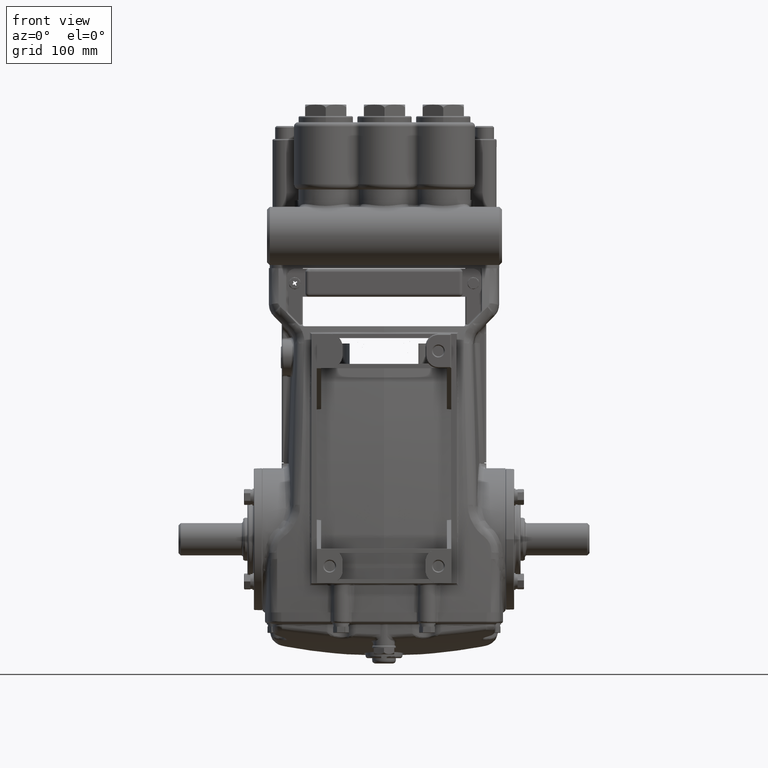
[diagram: clean part render]
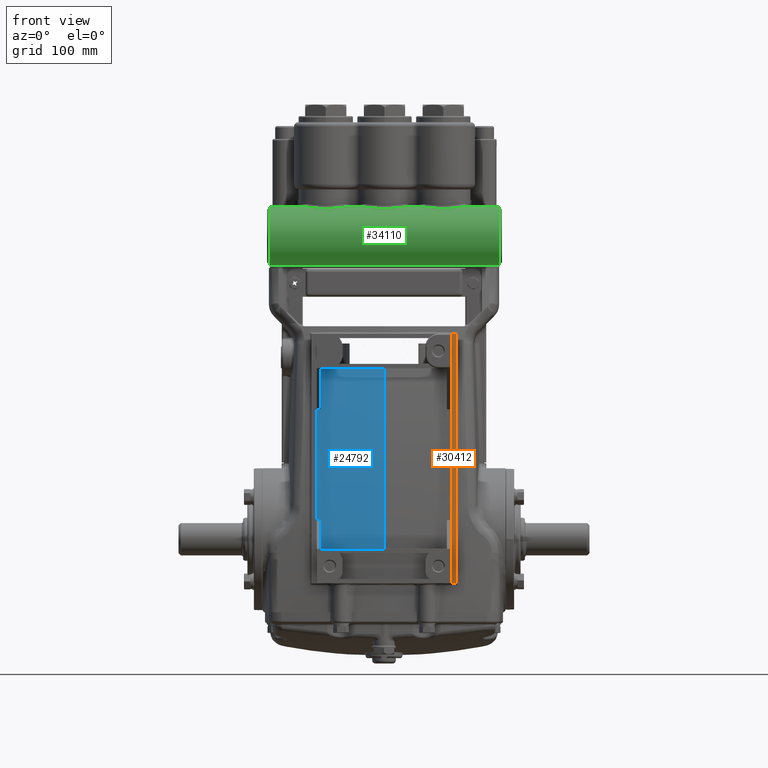
[diagram: same view with three faces highlighted in distinct colors, each labeled with its STEP entity id]
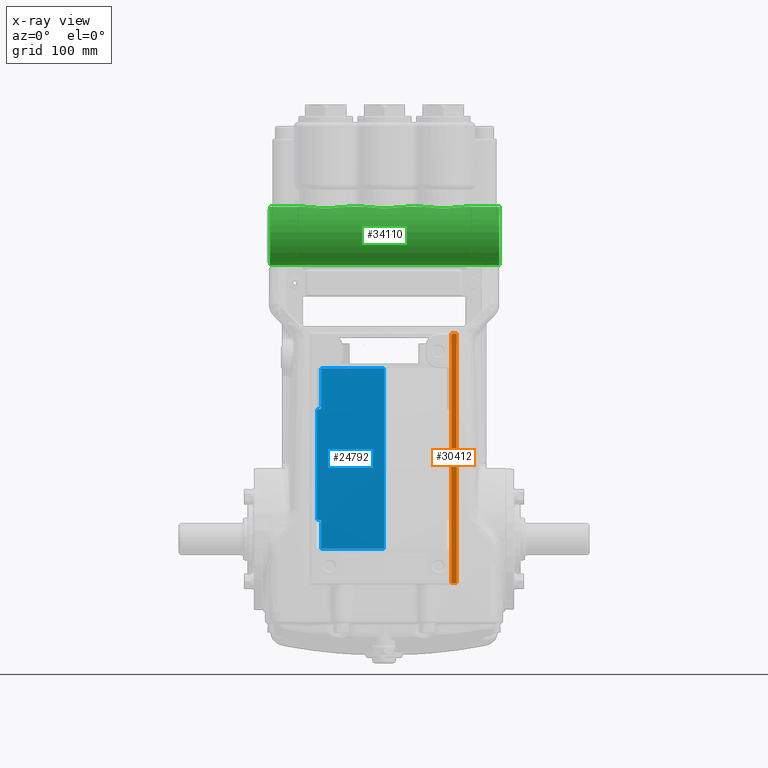
[diagram: x-ray of the same camera — body ghosted, the three highlighted faces saturated]
A machine part, front view with three faces highlighted in distinct colors.
The next image is the same camera in x-ray (body ghosted, the three faces saturated) — at least one of them is partly hidden behind the body in this view.
Their STEP definitions:

[orange] entity #30412 — the highlighted planar face has unit normal (0, 1, 0).
#2223 = VECTOR ( 'NONE', #54877, 39.37007874015748143 ) ;
#2397 = LINE ( 'NONE', #32345, #44707 ) ;
#4929 = ORIENTED_EDGE ( 'NONE', *, *, #38336, .T. ) ;
#5785 = VERTEX_POINT ( 'NONE', #88388 ) ;
#7231 = CARTESIAN_POINT ( 'NONE',  ( 2.657480314960630086, -3.149606299212598604, -1.614173228346456268 ) ) ;
#9472 = LINE ( 'NONE', #31588, #65958 ) ;
#11345 = VERTEX_POINT ( 'NONE', #58545 ) ;
#15267 = CARTESIAN_POINT ( 'NONE',  ( 2.460629921259842590, -3.149606299212598604, 5.393700787402513797 ) ) ;
#15608 = FACE_OUTER_BOUND ( 'NONE', #73630, .T. ) ;
#19373 = CARTESIAN_POINT ( 'NONE',  ( 2.460629921259842590, -3.149606299212598604, -1.614319481197498352 ) ) ;
#21862 = DIRECTION ( 'NONE',  ( 1.000000000000000000, 0.000000000000000000, 0.000000000000000000 ) ) ;
#22746 = VECTOR ( 'NONE', #21862, 39.37007874015748143 ) ;
#23248 = DIRECTION ( 'NONE',  ( -1.000000000000000000, 0.000000000000000000, 0.000000000000000000 ) ) ;
#24784 = CARTESIAN_POINT ( 'NONE',  ( 2.506403031587988384, -3.149606299212598604, -1.614173228346456268 ) ) ;
#24996 = DIRECTION ( 'NONE',  ( 0.000000000000000000, 0.000000000000000000, 1.000000000000000000 ) ) ;
#28539 = LINE ( 'NONE', #65850, #56411 ) ;
#29700 = LINE ( 'NONE', #58211, #22746 ) ;
#30101 = VERTEX_POINT ( 'NONE', #38305 ) ;
#30412 = ADVANCED_FACE ( 'NONE', ( #15608 ), #59302, .F. ) ;
#30727 = VERTEX_POINT ( 'NONE', #89174 ) ;
#31008 = AXIS2_PLACEMENT_3D ( 'NONE', #51492, #74072, #83358 ) ;
#31588 = CARTESIAN_POINT ( 'NONE',  ( 2.657480314960630086, -3.149606299212598604, 7.519685039370077817 ) ) ;
#32345 = CARTESIAN_POINT ( 'NONE',  ( 2.657480314960630086, -3.149606299212598604, -1.614173228346456268 ) ) ;
#38305 = CARTESIAN_POINT ( 'NONE',  ( 2.460629921259842590, -3.149606299212598604, 0.5118110236220356768 ) ) ;
#38336 = EDGE_CURVE ( 'NONE', #5785, #82753, #49690, .T. ) ;
#40010 = CARTESIAN_POINT ( 'NONE',  ( 2.491145250261694422, -3.149606299212598604, -1.614173228346390987 ) ) ;
#43436 = VERTEX_POINT ( 'NONE', #7231 ) ;
#43579 = VECTOR ( 'NONE', #94859, 39.37007874015748143 ) ;
#44707 = VECTOR ( 'NONE', #24996, 39.37007874015748143 ) ;
#49611 = ORIENTED_EDGE ( 'NONE', *, *, #85574, .T. ) ;
#49690 = B_SPLINE_CURVE_WITH_KNOTS ( 'NONE', 3,
 ( #19373, #62574, #40010, #24784 ),
 .UNSPECIFIED., .F., .F.,
 ( 4, 4 ),
 ( 0.000000000000000000, 0.001162642937063602033 ),
 .UNSPECIFIED. ) ;
#50173 = EDGE_CURVE ( 'NONE', #30101, #5785, #28539, .T. ) ;
#51492 = CARTESIAN_POINT ( 'NONE',  ( 2.657480314960630086, -3.149606299212598604, -1.614173228346456268 ) ) ;
#54377 = LINE ( 'NONE', #70572, #2223 ) ;
#54877 = DIRECTION ( 'NONE',  ( 0.000000000000000000, -0.000000000000000000, -1.000000000000000000 ) ) ;
#56411 = VECTOR ( 'NONE', #88910, 39.37007874015748143 ) ;
#57235 = VERTEX_POINT ( 'NONE', #15267 ) ;
#58041 = ORIENTED_EDGE ( 'NONE', *, *, #63693, .T. ) ;
#58211 = CARTESIAN_POINT ( 'NONE',  ( 2.460629921259842590, -3.149606299212598604, -1.614173228346456268 ) ) ;
#58545 = CARTESIAN_POINT ( 'NONE',  ( 2.460629921259842590, -3.149606299212598604, 7.519685039370077817 ) ) ;
#59302 = PLANE ( 'NONE',  #31008 ) ;
#60341 = EDGE_CURVE ( 'NONE', #11345, #57235, #54377, .T. ) ;
#61076 = ORIENTED_EDGE ( 'NONE', *, *, #60341, .T. ) ;
#62574 = CARTESIAN_POINT ( 'NONE',  ( 2.475887396097296911, -3.149606299212598604, -1.614222772431307851 ) ) ;
#63693 = EDGE_CURVE ( 'NONE', #82753, #43436, #29700, .T. ) ;
#64886 = CARTESIAN_POINT ( 'NONE',  ( 2.460629921259842590, -3.149606299212598604, -1.614173228346456268 ) ) ;
#65368 = LINE ( 'NONE', #64886, #43579 ) ;
#65850 = CARTESIAN_POINT ( 'NONE',  ( 2.460629921259842590, -3.149606299212598604, -1.614173228346456268 ) ) ;
#65958 = VECTOR ( 'NONE', #23248, 39.37007874015748143 ) ;
#70572 = CARTESIAN_POINT ( 'NONE',  ( 2.460629921259842590, -3.149606299212598604, -1.614173228346456268 ) ) ;
#73265 = EDGE_CURVE ( 'NONE', #57235, #30101, #65368, .T. ) ;
#73630 = EDGE_LOOP ( 'NONE', ( #92572, #4929, #58041, #49611, #77773, #61076, #90616 ) ) ;
#74072 = DIRECTION ( 'NONE',  ( 0.000000000000000000, 1.000000000000000000, 0.000000000000000000 ) ) ;
#77773 = ORIENTED_EDGE ( 'NONE', *, *, #95641, .T. ) ;
#82753 = VERTEX_POINT ( 'NONE', #84222 ) ;
#83358 = DIRECTION ( 'NONE',  ( 0.000000000000000000, 0.000000000000000000, 1.000000000000000000 ) ) ;
#84222 = CARTESIAN_POINT ( 'NONE',  ( 2.506403031587988384, -3.149606299212598604, -1.614173228346456268 ) ) ;
#85574 = EDGE_CURVE ( 'NONE', #43436, #30727, #2397, .T. ) ;
#88388 = CARTESIAN_POINT ( 'NONE',  ( 2.460629921259842590, -3.149606299212598604, -1.614319481197498352 ) ) ;
#88910 = DIRECTION ( 'NONE',  ( 0.000000000000000000, -0.000000000000000000, -1.000000000000000000 ) ) ;
#89174 = CARTESIAN_POINT ( 'NONE',  ( 2.657480314960630086, -3.149606299212598604, 7.519685039370077817 ) ) ;
#90616 = ORIENTED_EDGE ( 'NONE', *, *, #73265, .T. ) ;
#92572 = ORIENTED_EDGE ( 'NONE', *, *, #50173, .T. ) ;
#94859 = DIRECTION ( 'NONE',  ( 0.000000000000000000, -0.000000000000000000, -1.000000000000000000 ) ) ;
#95641 = EDGE_CURVE ( 'NONE', #30727, #11345, #9472, .T. ) ;

[blue] entity #24792 — the highlighted face is a freeform B-spline surface patch.
#30 = CARTESIAN_POINT ( 'NONE',  ( 2.068254672916848058, 0.2987381226801666401, 18.18253429005138599 ) ) ;
#362 = CARTESIAN_POINT ( 'NONE',  ( -2.460515561828938047, -2.506053103184957553, 4.750152615045485582 ) ) ;
#512 = CARTESIAN_POINT ( 'NONE',  ( 14.81264600693722855, -2.629684021970013497, 5.790622618753832995 ) ) ;
#631 = CARTESIAN_POINT ( 'NONE',  ( -12.72147174955565951, -1.158430481412706881, -2.677165354330669711 ) ) ;
#712 = EDGE_CURVE ( 'NONE', #53432, #95788, #53974, .T. ) ;
#996 = CARTESIAN_POINT ( 'NONE',  ( 13.54543065716574723, -3.157679832960618604, 1.566656130829030769 ) ) ;
#1111 = CARTESIAN_POINT ( 'NONE',  ( -197.4748104550627374, 36.24101230347761060, 5.790622618752260031 ) ) ;
#1488 = CARTESIAN_POINT ( 'NONE',  ( -0.2757142975349246572, -0.6763127173498466593, 14.05189706628557644 ) ) ;
#1562 = CARTESIAN_POINT ( 'NONE',  ( -0.4034719403721686581, -3.140685556616117147, -0.3543307086614107537 ) ) ;
#1571 = CARTESIAN_POINT ( 'NONE',  ( -8.220613785903983902E-16, -2.770291902121478245, 4.071278713388802650 ) ) ;
#1614 = CARTESIAN_POINT ( 'NONE',  ( -142.1762509406805464, 24.69816741518186376, 1.566656130829030769 ) ) ;
#1976 = CARTESIAN_POINT ( 'NONE',  ( 4.937548668979076183, -2.629684021970013497, 5.790622618753832995 ) ) ;
#2100 = CARTESIAN_POINT ( 'NONE',  ( -136.0338624326115280, 26.93109088950642516, 18.18253429004792565 ) ) ;
#2454 = CARTESIAN_POINT ( 'NONE',  ( 24.81905607500220157, 0.2987381226801666401, 18.18253429005138599 ) ) ;
#2577 = CARTESIAN_POINT ( 'NONE',  ( -166.7522035761170685, 29.52275324626126718, -2.677165354329922309 ) ) ;
#2945 = CARTESIAN_POINT ( 'NONE',  ( 31.60600486672007392, -3.157679832960618604, 1.566656130829030769 ) ) ;
#3072 = CARTESIAN_POINT ( 'NONE',  ( -3.707926774284417526, -0.3850142475194296976, 14.05189706628550184 ) ) ;
#3455 = CARTESIAN_POINT ( 'NONE',  ( 330.8157608215982464, -2.629684021970013497, 5.790622618753832995 ) ) ;
#3575 = CARTESIAN_POINT ( 'NONE',  ( -8.853015011869192818, 2.574241881593909209, 22.31317151381710673 ) ) ;
#3935 = CARTESIAN_POINT ( 'NONE',  ( 18.61429205625165295, 0.2987381226801666401, 18.18253429005138599 ) ) ;
#4057 = CARTESIAN_POINT ( 'NONE',  ( -3.868059063795630248, 1.592974043729076916, 22.31317151381721686 ) ) ;
#4418 = CARTESIAN_POINT ( 'NONE',  ( 424.4234939245266105, -3.157679832960618604, 1.566656130829030769 ) ) ;
#4543 = CARTESIAN_POINT ( 'NONE',  ( -4.443902435944632856, 0.7198556931367152689, 18.18253429005139310 ) ) ;
#4908 = CARTESIAN_POINT ( 'NONE',  ( 1168.036498236332363, -0.6774025922032267388, 14.05189706628553736 ) ) ;
#5029 = CARTESIAN_POINT ( 'NONE',  ( -4.614591127105058810, -1.198426475368198130, 9.921259842519685179 ) ) ;
#5370 = CARTESIAN_POINT ( 'NONE',  ( 1158.244977330859001, -3.228346456692912092, -2.677165354330708791 ) ) ;
#5484 = CARTESIAN_POINT ( 'NONE',  ( -1.399505760590513015, 0.3395852130249805145, 18.18253429005133626 ) ) ;
#5672 = VERTEX_POINT ( 'NONE', #14813 ) ;
#5968 = CARTESIAN_POINT ( 'NONE',  ( -3.094832008590024497, 1.477939064977719319, 22.31317151381732344 ) ) ;
#6081 = CARTESIAN_POINT ( 'NONE',  ( -1477.781864706674696, 292.2398714948351426, 9.921259842497420323 ) ) ;
#6122 = B_SPLINE_CURVE_WITH_KNOTS ( 'NONE', 3,
 ( #20988, #58756, #56856, #66142 ),
 .UNSPECIFIED., .F., .F.,
 ( 4, 4 ),
 ( 0.0005898908325132231050, 0.03904880407879738474 ),
 .UNSPECIFIED. ) ;
#6338 = CARTESIAN_POINT ( 'NONE',  ( 622.9538987220580566, 1.274878837563560019, 22.31317151381723818 ) ) ;
#6454 = CARTESIAN_POINT ( 'NONE',  ( -2.662327958505990466, -2.480799326495329638, 5.790622618753892503 ) ) ;
#6807 = CARTESIAN_POINT ( 'NONE',  ( 1516.866921316188609, -1.653543307086620118, 9.921259842519685179 ) ) ;
#6924 = CARTESIAN_POINT ( 'NONE',  ( -3.247768354581465289, 1.498519908364319919, 22.31317151381729502 ) ) ;
#7396 = CARTESIAN_POINT ( 'NONE',  ( -2.230366480990733979, -2.526131640887426588, 5.790622618753880069 ) ) ;
#7889 = CARTESIAN_POINT ( 'NONE',  ( 11.56471780432011798, -0.6774025922032267388, 14.05189706628553736 ) ) ;
#8013 = CARTESIAN_POINT ( 'NONE',  ( -20.82835237200626111, 0.4563686621490810058, -2.677165354330630187 ) ) ;
#8366 = CARTESIAN_POINT ( 'NONE',  ( 10.71990757113913517, -1.653543307086620118, 9.921259842519685179 ) ) ;
#8386 = CARTESIAN_POINT ( 'NONE',  ( -2.460515561828938047, -2.506053103184957553, 4.750152615045485582 ) ) ;
#8488 = CARTESIAN_POINT ( 'NONE',  ( -177.8912814374547509, 34.29247572958745138, 14.05189706628187807 ) ) ;
#8846 = CARTESIAN_POINT ( 'NONE',  ( -3.933861110876539035E-15, 0.2987381226801666401, 18.18253429005138599 ) ) ;
#8971 = CARTESIAN_POINT ( 'NONE',  ( -60.51029767883075294, 10.91150826857076339, 14.05189706628435609 ) ) ;
#9337 = CARTESIAN_POINT ( 'NONE',  ( 4.515143552388582115, -3.157679832960618604, 1.566656130829030769 ) ) ;
#9460 = CARTESIAN_POINT ( 'NONE',  ( -127.5851455409016069, 24.27206110343744072, 14.05189706628294033 ) ) ;
#9828 = CARTESIAN_POINT ( 'NONE',  ( -0.07300827702222026372, -3.157679832960618604, 1.566656130829030769 ) ) ;
#9948 = CARTESIAN_POINT ( 'NONE',  ( -45.14899423935806055, 5.300766092834444443, -2.677165354330512059 ) ) ;
#10308 = CARTESIAN_POINT ( 'NONE',  ( 62.04764018750552168, 0.2987381226801666401, 18.18253429005138599 ) ) ;
#10435 = CARTESIAN_POINT ( 'NONE',  ( -3.743440484734033902, -1.355363442417273356, 9.921259842519656758 ) ) ;
#10806 = CARTESIAN_POINT ( 'NONE',  ( 265.0867654136416718, 1.274878837563560019, 22.31317151381723818 ) ) ;
#10834 = CARTESIAN_POINT ( 'NONE',  ( -0.7139402819349873752, -2.387092929719667911, 6.259842519685069995 ) ) ;
#10928 = CARTESIAN_POINT ( 'NONE',  ( -9.052064024317170166, -1.818668471680132903, 1.566656130829030769 ) ) ;
#11297 = CARTESIAN_POINT ( 'NONE',  ( 444.0203320678498926, 1.274878837563560019, 22.31317151381723818 ) ) ;
#11417 = CARTESIAN_POINT ( 'NONE',  ( -7.572906391913131863, -2.113299981534154881, 1.566656130829030769 ) ) ;
#11778 = CARTESIAN_POINT ( 'NONE',  ( 145.7977209775029337, 1.274878837563560019, 22.31317151381723818 ) ) ;
#11898 = CARTESIAN_POINT ( 'NONE',  ( -3.632599672236724420, -2.876950960039121874, 1.566656130829023885 ) ) ;
#11983 = B_SPLINE_SURFACE_WITH_KNOTS ( 'NONE', 3, 3, ( 
 ( #88572, #14892, #36989, #50777, #30112, #95971, #37474 ),
 ( #22738, #96899, #42922, #6081, #60038, #29627, #65983 ),
 ( #28196, #58615, #89543, #12987, #22272, #96432, #90025 ),
 ( #29145, #58137, #80714, #36517, #81186, #28675, #66925 ),
 ( #21310, #13948, #73850, #52226, #59078, #89059, #21788 ),
 ( #51749, #81669, #82137, #44829, #74798, #67417, #17331 ),
 ( #2577, #69834, #1111, #84579, #76756, #46774, #60517 ),
 ( #23724, #1614, #31575, #83126, #8488, #75785, #75290 ),
 ( #62468, #53673, #16357, #45322, #9460, #2100, #77248 ),
 ( #84092, #38936, #47268, #31076, #61512, #32528, #39429 ),
 ( #9948, #32043, #92451, #61016, #8971, #16839, #46282 ),
 ( #68876, #52699, #69371, #82624, #15382, #91004, #24197 ),
 ( #8013, #76267, #91482, #39901, #23233, #61982, #91958 ),
 ( #83614, #37971, #54144, #67904, #54632, #90509, #24680 ),
 ( #631, #30587, #53188, #15875, #45811, #38448, #68388 ),
 ( #48246, #10928, #64431, #55128, #26152, #71312, #72302 ),
 ( #64912, #11417, #40889, #70829, #18295, #17816, #3575 ),
 ( #33503, #56587, #87031, #93922, #85556, #63442, #63935 ),
 ( #79652, #19749, #93428, #5029, #25176, #49711, #55612 ),
 ( #56098, #86555, #86054, #25662, #42354, #4543, #12399 ),
 ( #34973, #70325, #40389, #78203, #18784, #34491, #47751 ),
 ( #71808, #85074, #48743, #78704, #19274, #41380, #4057 ),
 ( #33998, #77715, #49225, #10435, #3072, #26638, #79173 ),
 ( #33022, #11898, #41862, #62970, #92949, #94410, #27126 ),
 ( #57064, #66801, #43280, #88462, #81552, #73738, #6924 ),
 ( #37349, #73261, #50199, #42819, #27598, #87999, #5968 ),
 ( #94887, #50664, #58025, #12876, #81075, #80608, #43767 ),
 ( #51135, #13827, #6454, #36406, #13348, #95368, #96320 ),
 ( #35446, #66344, #7396, #89425, #14775, #57543, #21671 ),
 ( #29023, #44705, #22154, #88937, #65397, #87517, #82026 ),
 ( #29499, #58961, #20236, #74673, #14312, #20726, #35926 ),
 ( #28082, #72780, #65874, #21197, #80135, #5484, #51627 ),
 ( #95863, #96783, #59436, #28571, #58504, #44248, #74201 ),
 ( #36862, #52110, #75166, #90872, #38327, #16234, #46163 ),
 ( #23111, #90385, #89906, #47143, #77126, #68267, #30951 ),
 ( #91365, #16720, #91834, #60400, #1488, #53551, #61866 ),
 ( #76143, #9828, #24078, #30469, #24555, #46654, #17217 ),
 ( #23597, #31448, #60891, #83495, #76633, #8846, #67293 ),
 ( #38816, #15258, #68749, #52575, #31922, #30, #69246 ),
 ( #61386, #82499, #45192, #53062, #54025, #75663, #39305 ),
 ( #83966, #9337, #1976, #54507, #84458, #29993, #45689 ),
 ( #59924, #83000, #22623, #8366, #7889, #37849, #67787 ),
 ( #15745, #996, #512, #48122, #71687, #3935, #77595 ),
 ( #55493, #64306, #55008, #79532, #56465, #2454, #70202 ),
 ( #86426, #2945, #33871, #32403, #18173, #49104, #69712 ),
 ( #55979, #19639, #18661, #85930, #63806, #10308, #56949 ),
 ( #94289, #84949, #39777, #19155, #62350, #32904, #86914 ),
 ( #62846, #93796, #92326, #78081, #79056, #25054, #11778 ),
 ( #49587, #48621, #78579, #17695, #47623, #93311, #40766 ),
 ( #26514, #40267, #92828, #25546, #85431, #41738, #10806 ),
 ( #70703, #63323, #3455, #33389, #41266, #26025, #11297 ),
 ( #71188, #4418, #34364, #27010, #44131, #36289, #6338 ),
 ( #35812, #80496, #58389, #88353, #42708, #65282, #35333 ),
 ( #89311, #22039, #13229, #73146, #4908, #66231, #58850 ),
 ( #5370, #43653, #95741, #6807, #87882, #21082, #52002 ),
 ( #72665, #36742, #88819, #59323, #57903, #65760, #73626 ) ),
 .UNSPECIFIED., .F., .F., .F.,
 ( 4, 3, 3, 3, 3, 3, 3, 1, 1, 1, 1, 1, 1, 1, 1, 1, 1, 1, 1, 1, 1, 1, 1, 3, 3, 3, 3, 3, 3, 4 ),
 ( 4, 3, 4 ),
 ( -140.6602418296972417, -46.34945069376181692, -14.91252031511667653, -4.433543522234962175, -0.9405512579410577612, 0.2237794968235768955, 0.6118897484117884478, 0.6451591311587479005, 0.6656908127142201481, 0.6779313976040497458, 0.7001579938589312935, 0.7121351037956823449, 0.7328303451265104629, 0.7429230029103132127, 0.7651453021765547424, 0.8217788134722864291, 0.8537625969639116574, 0.8807560474209973345, 0.8863934047552577411, 0.9159917760011976329, 0.9494142179265985249, 0.9620009169027918805, 0.9811731828007156375, 1.000000000000000000, 1.388110251588211552, 2.552441006352846209, 6.045433270646750401, 16.52441006352846387, 47.96134044217360781, 142.2721315781090539 ),
 ( 0.000000000000000000, 1.000000000000000000, 2.000000000000000000 ),
 .UNSPECIFIED. ) ;
#12399 = CARTESIAN_POINT ( 'NONE',  ( -4.432929156197262799, 1.693810654514742442, 22.31317151381724884 ) ) ;
#12876 = CARTESIAN_POINT ( 'NONE',  ( -2.984551926383985254, -1.464495822942248449, 9.921259842519742023 ) ) ;
#12987 = CARTESIAN_POINT ( 'NONE',  ( -1056.133281102628189, 208.2522314397592709, 9.921259842503792115 ) ) ;
#13229 = CARTESIAN_POINT ( 'NONE',  ( 997.3848311337741279, -2.629684021970013497, 5.790622618753832995 ) ) ;
#13348 = CARTESIAN_POINT ( 'NONE',  ( -2.638513698461737444, -0.5309768350106319756, 14.05189706628566704 ) ) ;
#13827 = CARTESIAN_POINT ( 'NONE',  ( -2.674235088528118087, -3.007565668344890142, 1.566656130829055860 ) ) ;
#13948 = CARTESIAN_POINT ( 'NONE',  ( -421.7370434650436550, 80.38352277759204867, 1.566656130829030769 ) ) ;
#14286 = CARTESIAN_POINT ( 'NONE',  ( -2.303149606299212504, -2.988840434139913960, 0.3477852836264888614 ) ) ;
#14312 = CARTESIAN_POINT ( 'NONE',  ( -1.594130663885086063, -0.6239268239763350321, 14.05189706628549651 ) ) ;
#14775 = CARTESIAN_POINT ( 'NONE',  ( -2.246878270217475215, -0.5719395709258071614, 14.05189706628562085 ) ) ;
#14813 = CARTESIAN_POINT ( 'NONE',  ( -2.303149606299212504, -2.284807564803296831, 6.259842519685038909 ) ) ;
#14892 = CARTESIAN_POINT ( 'NONE',  ( -1619.854725712314121, 319.0350457593500551, 1.566656130829030769 ) ) ;
#15258 = CARTESIAN_POINT ( 'NONE',  ( 1.505047850796194187, -3.157679832960618604, 1.566656130829030769 ) ) ;
#15382 = CARTESIAN_POINT ( 'NONE',  ( -43.74158571331304302, 7.571370059854093171, 14.05189706628470958 ) ) ;
#15630 = ORIENTED_EDGE ( 'NONE', *, *, #46086, .T. ) ;
#15673 = ORIENTED_EDGE ( 'NONE', *, *, #70811, .T. ) ;
#15745 = CARTESIAN_POINT ( 'NONE',  ( 12.27821530739426947, -3.228346456692912092, -2.677165354330708791 ) ) ;
#15875 = CARTESIAN_POINT ( 'NONE',  ( -15.02566726547656906, 0.8753424148805890592, 9.921259842519528860 ) ) ;
#16234 = CARTESIAN_POINT ( 'NONE',  ( -0.8247709549648695182, 0.3121308061759374697, 18.18253429005145350 ) ) ;
#16262 = CARTESIAN_POINT ( 'NONE',  ( -1.781873629631390843, -2.330873585034959561, 6.259842519685037132 ) ) ;
#16357 = CARTESIAN_POINT ( 'NONE',  ( -110.6877117574817788, 18.95400153129947185, 5.790622618752967909 ) ) ;
#16720 = CARTESIAN_POINT ( 'NONE',  ( -0.2202293759766089376, -3.156986609940064525, 1.566656130829040539 ) ) ;
#16839 = CARTESIAN_POINT ( 'NONE',  ( -64.35062353869889762, 12.65259856126578875, 18.18253429004981570 ) ) ;
#17217 = CARTESIAN_POINT ( 'NONE',  ( -0.1071589849784849030, 1.274878837563560019, 22.31317151381723818 ) ) ;
#17241 = CARTESIAN_POINT ( 'NONE',  ( -2.067182510013254593, -2.307269240631400375, 6.259842519685071771 ) ) ;
#17285 = CARTESIAN_POINT ( 'NONE',  ( -2.303149606299212948, -3.031354035816912429, -0.3543307086614183032 ) ) ;
#17331 = CARTESIAN_POINT ( 'NONE',  ( -430.5761915459005422, 86.57674000663017466, 22.31317151380406116 ) ) ;
#17695 = CARTESIAN_POINT ( 'NONE',  ( 166.1585673526566325, -1.653543307086620118, 9.921259842519685179 ) ) ;
#17816 = CARTESIAN_POINT ( 'NONE',  ( -8.596993287877982226, 1.547104528189738648, 18.18253429005128297 ) ) ;
#18173 = CARTESIAN_POINT ( 'NONE',  ( 40.47651231512042358, -0.6774025922032267388, 14.05189706628553736 ) ) ;
#18198 = CARTESIAN_POINT ( 'NONE',  ( -0.2409250722683701773, -2.396512214949160668, 6.259842519685062889 ) ) ;
#18295 = CARTESIAN_POINT ( 'NONE',  ( -8.340971563886773410, 0.5199671747855680870, 14.05189706628545743 ) ) ;
#18661 = CARTESIAN_POINT ( 'NONE',  ( 49.37548668979076183, -2.629684021970013497, 5.790622618753832995 ) ) ;
#18784 = CARTESIAN_POINT ( 'NONE',  ( -4.211177497756748878, -0.2999606666474618488, 14.05189706628556756 ) ) ;
#19155 = CARTESIAN_POINT ( 'NONE',  ( 69.67939921240439105, -1.653543307086620118, 9.921259842519685179 ) ) ;
#19268 = CARTESIAN_POINT ( 'NONE',  ( 9.783861284609117060E-17, -2.397353387820880144, 6.259842519684989171 ) ) ;
#19274 = CARTESIAN_POINT ( 'NONE',  ( -3.932040788143863264, -0.3482533733187864189, 14.05189706628552315 ) ) ;
#19639 = CARTESIAN_POINT ( 'NONE',  ( 45.15143552388582293, -3.157679832960618604, 1.566656130829030769 ) ) ;
#19749 = CARTESIAN_POINT ( 'NONE',  ( -4.614591127105057922, -2.702563001242199281, 1.566656130829030769 ) ) ;
#20118 = ORIENTED_EDGE ( 'NONE', *, *, #44680, .F. ) ;
#20236 = CARTESIAN_POINT ( 'NONE',  ( -1.525570452187936965, -2.580619674316255718, 5.790622618753817008 ) ) ;
#20469 = CARTESIAN_POINT ( 'NONE',  ( -2.303149606299212948, -3.031354035816912429, -0.3543307086614183032 ) ) ;
#20658 = B_SPLINE_CURVE_WITH_KNOTS ( 'NONE', 3,
 ( #17285, #84041, #90948, #47219, #62423, #76215, #38889, #92399, #1562, #47696, #39377, #61457 ),
 .UNSPECIFIED., .F., .F.,
 ( 4, 1, 1, 1, 1, 1, 1, 1, 1, 4 ),
 ( 0.004020411046487371021, 0.008566739183912366537, 0.01827091909264972128, 0.02646098515102389415, 0.02817141224279768458, 0.03715183570181115891, 0.04729251807349937192, 0.05111144060197644196, 0.05692848590496001754, 0.06264071883258112705 ),
 .UNSPECIFIED. ) ;
#20671 = EDGE_CURVE ( 'NONE', #53939, #5672, #6122, .T. ) ;
#20726 = CARTESIAN_POINT ( 'NONE',  ( -1.628410769733660501, 0.3544196011936252555, 18.18253429005133626 ) ) ;
#20988 = CARTESIAN_POINT ( 'NONE',  ( -2.303149606299211616, -2.519994672581295170, 4.764089160771896481 ) ) ;
#21082 = CARTESIAN_POINT ( 'NONE',  ( 1755.948217306405922, 0.2987381226801666401, 18.18253429005138599 ) ) ;
#21197 = CARTESIAN_POINT ( 'NONE',  ( -1.320588146391441731, -1.616942975069631361, 9.921259842519658534 ) ) ;
#21310 = CARTESIAN_POINT ( 'NONE',  ( -385.6379803822832741, 73.12233012242955965, -2.677165354328860047 ) ) ;
#21671 = CARTESIAN_POINT ( 'NONE',  ( -2.263390059444216451, 1.382252499035812265, 22.31317151381736608 ) ) ;
#21788 = CARTESIAN_POINT ( 'NONE',  ( -602.2323588788480038, 120.7687116052630358, 22.31317151379874986 ) ) ;
#21998 = CARTESIAN_POINT ( 'NONE',  ( -2.355672760052164971, -2.957322560406235645, 0.7040947624283970807 ) ) ;
#22039 = CARTESIAN_POINT ( 'NONE',  ( 912.0589975824934754, -3.157679832960618604, 1.566656130829030769 ) ) ;
#22154 = CARTESIAN_POINT ( 'NONE',  ( -1.778699838802215494, -2.563449299936535919, 5.790622618753828554 ) ) ;
#22272 = CARTESIAN_POINT ( 'NONE',  ( -1133.707863471964629, 224.6803536264376362, 14.05189706626169688 ) ) ;
#22623 = CARTESIAN_POINT ( 'NONE',  ( 9.875097337958152366, -2.629684021970013497, 5.790622618753832995 ) ) ;
#22738 = CARTESIAN_POINT ( 'NONE',  ( -1151.738199203865406, 225.7208491890186224, -2.677165354325142577 ) ) ;
#23111 = CARTESIAN_POINT ( 'NONE',  ( -0.3874714434721882039, -3.225393750894484324, -2.677165354330706570 ) ) ;
#23233 = CARTESIAN_POINT ( 'NONE',  ( -26.97287374779533309, 4.231231851137423838, 14.05189706628506485 ) ) ;
#23597 = CARTESIAN_POINT ( 'NONE',  ( 1.446433227339393568E-15, -3.228346456692912092, -2.677165354330708791 ) ) ;
#23724 = CARTESIAN_POINT ( 'NONE',  ( -130.2712407750893817, 22.25615710023322080, -2.677165354330099056 ) ) ;
#23955 = VERTEX_POINT ( 'NONE', #55116 ) ;
#24078 = CARTESIAN_POINT ( 'NONE',  ( -0.07983841861347214242, -2.629684021970013497, 5.790622618753832995 ) ) ;
#24197 = CARTESIAN_POINT ( 'NONE',  ( -49.11804191712842993, 10.59458089855716700, 22.31317151381586328 ) ) ;
#24555 = CARTESIAN_POINT ( 'NONE',  ( -0.09349870179597852271, -0.6774025922032267388, 14.05189706628553736 ) ) ;
#24680 = CARTESIAN_POINT ( 'NONE',  ( -23.68749860854365252, 5.529103624685636653, 22.31317151381664843 ) ) ;
#24792 = ADVANCED_FACE ( 'NONE', ( #66450 ), #11983, .T. ) ;
#25054 = CARTESIAN_POINT ( 'NONE',  ( 136.5048084125121193, 0.2987381226801666401, 18.18253429005138599 ) ) ;
#25079 = CARTESIAN_POINT ( 'NONE',  ( -1.015587484312600486, -2.376431212877817778, 6.259842519685043349 ) ) ;
#25176 = CARTESIAN_POINT ( 'NONE',  ( -4.614591127105059698, -0.2222857604848033630, 14.05189706628553736 ) ) ;
#25546 = CARTESIAN_POINT ( 'NONE',  ( 214.3981514227827461, -1.653543307086620118, 9.921259842519685179 ) ) ;
#25662 = CARTESIAN_POINT ( 'NONE',  ( -4.465848995439372082, -1.228054229619339077, 9.921259842519686956 ) ) ;
#26025 = CARTESIAN_POINT ( 'NONE',  ( 415.7191892562869384, 0.2987381226801666401, 18.18253429005138599 ) ) ;
#26152 = CARTESIAN_POINT ( 'NONE',  ( -10.20416178227762849, 0.8910936424207537288, 14.05189706628541835 ) ) ;
#26514 = CARTESIAN_POINT ( 'NONE',  ( 163.7095374319235077, -3.228346456692912092, -2.677165354330708791 ) ) ;
#26638 = CARTESIAN_POINT ( 'NONE',  ( -3.672413063834801150, 0.5853349473784140722, 18.18253429005134336 ) ) ;
#27010 = CARTESIAN_POINT ( 'NONE',  ( 503.8356558435395414, -1.653543307086620118, 9.921259842519685179 ) ) ;
#27126 = CARTESIAN_POINT ( 'NONE',  ( -3.453412476792318220, 1.527876587523569585, 22.31317151381723107 ) ) ;
#27598 = CARTESIAN_POINT ( 'NONE',  ( -3.155094314444369274, -0.4660481602091839370, 14.05189706628559065 ) ) ;
#27921 = CARTESIAN_POINT ( 'NONE',  ( -2.408154699653602293, -2.951576071577237670, 0.7098412512573941680 ) ) ;
#28082 = CARTESIAN_POINT ( 'NONE',  ( -1.202211725092835470, -3.198116262167661095, -2.677165354330694136 ) ) ;
#28196 = CARTESIAN_POINT ( 'NONE',  ( -823.4095339946159129, 160.3214838747661588, -2.677165354326735525 ) ) ;
#28571 = CARTESIAN_POINT ( 'NONE',  ( -1.052955522912889963, -1.631054070692795843, 9.921259842519685179 ) ) ;
#28675 = CARTESIAN_POINT ( 'NONE',  ( -727.4205833073908707, 144.7286525974916458, 18.18253429003234700 ) ) ;
#29023 = CARTESIAN_POINT ( 'NONE',  ( -1.725354466973584744, -3.166231074764331854, -2.677165354330710567 ) ) ;
#29145 = CARTESIAN_POINT ( 'NONE',  ( -495.0808687853664196, 94.92211856051370944, -2.677165354328328917 ) ) ;
#29499 = CARTESIAN_POINT ( 'NONE',  ( -1.457010240490788977, -3.183693529612289463, -2.677165354330698133 ) ) ;
#29627 = CARTESIAN_POINT ( 'NONE',  ( -1695.144308375211722, 337.4882990287401867, 18.18253429000685628 ) ) ;
#29993 = CARTESIAN_POINT ( 'NONE',  ( 6.204764018750550392, 0.2987381226801666401, 18.18253429005138599 ) ) ;
#30112 = CARTESIAN_POINT ( 'NONE',  ( -2039.218309609921789, 405.0478168971378068, 14.05189706624257795 ) ) ;
#30469 = CARTESIAN_POINT ( 'NONE',  ( -0.08666856020472532562, -1.653543307086620118, 9.921259842519685179 ) ) ;
#30484 = CARTESIAN_POINT ( 'NONE',  ( -2.460629921259843478, -2.945639392558654368, 0.7157764201855959518 ) ) ;
#30587 = CARTESIAN_POINT ( 'NONE',  ( -13.48953692152928241, -0.9347739421180663033, 1.566656130829030769 ) ) ;
#30951 = CARTESIAN_POINT ( 'NONE',  ( -0.5626853564969841459, 1.280885666233809950, 22.31317151381732344 ) ) ;
#31076 = CARTESIAN_POINT ( 'NONE',  ( -72.28658602651988474, 12.28107131124891538, 9.921259842518661998 ) ) ;
#31448 = CARTESIAN_POINT ( 'NONE',  ( 0.000000000000000000, -3.157679832960618604, 1.566656130829030769 ) ) ;
#31575 = CARTESIAN_POINT ( 'NONE',  ( -154.0812611062722510, 27.59750691738854300, 5.790622618752613526 ) ) ;
#31922 = CARTESIAN_POINT ( 'NONE',  ( 1.927452967386684923, -0.6774025922032267388, 14.05189706628553736 ) ) ;
#32001 = CARTESIAN_POINT ( 'NONE',  ( -6.110739721206161446E-16, -3.019586185884665319, 1.863036771043387052 ) ) ;
#32043 = CARTESIAN_POINT ( 'NONE',  ( -48.98932009922618391, 6.136382294378465829, 1.566656130829030769 ) ) ;
#32220 = CARTESIAN_POINT ( 'NONE',  ( -2.408011180910472060, -2.510860757284744338, 4.754955245475355419 ) ) ;
#32403 = CARTESIAN_POINT ( 'NONE',  ( 37.51967649898697488, -1.653543307086620118, 9.921259842519685179 ) ) ;
#32528 = CARTESIAN_POINT ( 'NONE',  ( -82.27143326217704100, 16.22222164332594829, 18.18253429004934318 ) ) ;
#32579 = B_SPLINE_CURVE_WITH_KNOTS ( 'NONE', 3,
 ( #89270, #27921, #21998, #81878 ),
 .UNSPECIFIED., .F., .F.,
 ( 4, 4 ),
 ( 0.000000000000000000, 0.004046785542338594832 ),
 .UNSPECIFIED. ) ;
#32904 = CARTESIAN_POINT ( 'NONE',  ( 80.66193224375716397, 0.2987381226801666401, 18.18253429005138599 ) ) ;
#33022 = CARTESIAN_POINT ( 'NONE',  ( -3.668437111325606015, -2.942071359179118328, -2.677165354330714564 ) ) ;
#33389 = CARTESIAN_POINT ( 'NONE',  ( 359.1169036331611437, -1.653543307086620118, 9.921259842519685179 ) ) ;
#33503 = CARTESIAN_POINT ( 'NONE',  ( -5.965737897513490040, -2.504096434380863379, -2.677165354330702574 ) ) ;
#33871 = CARTESIAN_POINT ( 'NONE',  ( 34.56284068285353328, -2.629684021970013497, 5.790622618753832995 ) ) ;
#33998 = CARTESIAN_POINT ( 'NONE',  ( -3.849981616082885250, -2.912792032066917169, -2.677165354330708791 ) ) ;
#34364 = CARTESIAN_POINT ( 'NONE',  ( 464.1295748840333886, -2.629684021970013497, 5.790622618753832995 ) ) ;
#34491 = CARTESIAN_POINT ( 'NONE',  ( -4.187405417955849529, 0.6717499539009327281, 18.18253429005142863 ) ) ;
#34973 = CARTESIAN_POINT ( 'NONE',  ( -4.306265816960345383, -2.833184153797152494, -2.677165354330705682 ) ) ;
#35333 = CARTESIAN_POINT ( 'NONE',  ( 801.8874653762661637, 1.274878837563560019, 22.31317151381723818 ) ) ;
#35446 = CARTESIAN_POINT ( 'NONE',  ( -2.213854691763994076, -3.126704715805157964, -2.677165354330698133 ) ) ;
#35812 = CARTESIAN_POINT ( 'NONE',  ( 495.2213507315685774, -3.228346456692912092, -2.677165354330708791 ) ) ;
#35926 = CARTESIAN_POINT ( 'NONE',  ( -1.662690875582234940, 1.332766026363585654, 22.31317151381717778 ) ) ;
#36289 = CARTESIAN_POINT ( 'NONE',  ( 583.2478177625519038, 0.2987381226801666401, 18.18253429005138599 ) ) ;
#36406 = CARTESIAN_POINT ( 'NONE',  ( -2.650420828483864177, -1.505888080752980862, 9.921259842519779326 ) ) ;
#36517 = CARTESIAN_POINT ( 'NONE',  ( -634.4846974985816814, 124.2645913846833992, 9.921259842510165683 ) ) ;
#36742 = CARTESIAN_POINT ( 'NONE',  ( 1643.512253069443886, -3.157679832960618604, 1.566656130829030769 ) ) ;
#36862 = CARTESIAN_POINT ( 'NONE',  ( -0.6324240272028155418, -3.220389758699198079, -2.677165354330706126 ) ) ;
#36989 = CARTESIAN_POINT ( 'NONE',  ( -1759.642587011520618, 347.4072062026842218, 5.790622618739513783 ) ) ;
#37241 = ORIENTED_EDGE ( 'NONE', *, *, #73499, .F. ) ;
#37349 = CARTESIAN_POINT ( 'NONE',  ( -3.275618926153061050, -3.000403615539101843, -2.677165354330710123 ) ) ;
#37474 = CARTESIAN_POINT ( 'NONE',  ( -2318.794032208322733, 462.6884275915916191, 22.31317151374564389 ) ) ;
#37849 = CARTESIAN_POINT ( 'NONE',  ( 12.40952803750110078, 0.2987381226801666401, 18.18253429005138599 ) ) ;
#37971 = CARTESIAN_POINT ( 'NONE',  ( -17.92700981874139288, -0.05087941255599976592, 1.566656130829030769 ) ) ;
#38327 = CARTESIAN_POINT ( 'NONE',  ( -0.7863015694124584343, -0.6650971058078671838, 14.05189706628558888 ) ) ;
#38448 = CARTESIAN_POINT ( 'NONE',  ( -16.56179760942382373, 3.133603675772032027, 18.18253429005107336 ) ) ;
#38816 = CARTESIAN_POINT ( 'NONE',  ( 1.364246145266030830, -3.228346456692912092, -2.677165354330708791 ) ) ;
#38889 = CARTESIAN_POINT ( 'NONE',  ( -0.9489504614685662087, -3.125789471275609799, -0.3543307086614160828 ) ) ;
#38936 = CARTESIAN_POINT ( 'NONE',  ( -62.30173879086251532, 8.788065883064666295, 1.566656130829030769 ) ) ;
#39305 = CARTESIAN_POINT ( 'NONE',  ( 4.418112756894029047, 1.274878837563560019, 22.31317151381723818 ) ) ;
#39377 = CARTESIAN_POINT ( 'NONE',  ( -0.06992049780861009367, -3.143917164259148134, -0.3543307086614196910 ) ) ;
#39429 = CARTESIAN_POINT ( 'NONE',  ( -87.26385688000563334, 18.19279680936446297, 22.31317151381468022 ) ) ;
#39777 = CARTESIAN_POINT ( 'NONE',  ( 64.18813269672799038, -2.629684021970013497, 5.790622618753832995 ) ) ;
#39901 = CARTESIAN_POINT ( 'NONE',  ( -25.43674340384808019, 2.949111305129375804, 9.921259842519370764 ) ) ;
#40267 = CARTESIAN_POINT ( 'NONE',  ( 180.6057420955432633, -3.157679832960618604, 1.566656130829030769 ) ) ;
#40389 = CARTESIAN_POINT ( 'NONE',  ( -4.258721657358547574, -2.243381907744251169, 5.790622618753848094 ) ) ;
#40766 = CARTESIAN_POINT ( 'NONE',  ( 205.4422431955723027, 1.274878837563560019, 22.31317151381723818 ) ) ;
#40793 = CARTESIAN_POINT ( 'NONE',  ( -1.285824554483394833, -2.362623773449241238, 6.259842519685026474 ) ) ;
#40889 = CARTESIAN_POINT ( 'NONE',  ( -7.828928115904352225, -1.534307532022772591, 5.790622618753807238 ) ) ;
#41266 = CARTESIAN_POINT ( 'NONE',  ( 387.4180464447240411, -0.6774025922032267388, 14.05189706628553736 ) ) ;
#41380 = CARTESIAN_POINT ( 'NONE',  ( -3.900049925969746756, 0.6223603352051452209, 18.18253429005137178 ) ) ;
#41738 = CARTESIAN_POINT ( 'NONE',  ( 248.1905607500220583, 0.2987381226801666401, 18.18253429005138599 ) ) ;
#41862 = CARTESIAN_POINT ( 'NONE',  ( -3.596762233147841936, -2.354501373640813799, 5.790622618753825890 ) ) ;
#42354 = CARTESIAN_POINT ( 'NONE',  ( -4.454875715692002913, -0.2540992682413119041, 14.05189706628554092 ) ) ;
#42708 = CARTESIAN_POINT ( 'NONE',  ( 699.6654271613673473, -0.6774025922032267388, 14.05189706628553736 ) ) ;
#42819 = CARTESIAN_POINT ( 'NONE',  ( -3.185225467371541441, -1.438041772802635565, 9.921259842519724259 ) ) ;
#42922 = CARTESIAN_POINT ( 'NONE',  ( -1369.100642872406070, 269.6156577278825353, 5.790622618742700567 ) ) ;
#43280 = CARTESIAN_POINT ( 'NONE',  ( -3.382156207483432375, -2.386529242652323468, 5.790622618753845430 ) ) ;
#43653 = CARTESIAN_POINT ( 'NONE',  ( 1277.785625325968567, -3.157679832960618604, 1.566656130829030769 ) ) ;
#43767 = CARTESIAN_POINT ( 'NONE',  ( -2.911861396086488973, 1.454600600577739433, 22.31317151381736252 ) ) ;
#44131 = CARTESIAN_POINT ( 'NONE',  ( 543.5417368030456373, -0.6774025922032267388, 14.05189706628553736 ) ) ;
#44222 = CARTESIAN_POINT ( 'NONE',  ( -2.303149606299212504, -2.962880837909014797, 0.6985364849250338404 ) ) ;
#44248 = CARTESIAN_POINT ( 'NONE',  ( -1.137785550299992732, 0.3247847806245039992, 18.18253429005138599 ) ) ;
#44680 = EDGE_CURVE ( 'NONE', #53432, #53939, #50349, .T. ) ;
#44705 = CARTESIAN_POINT ( 'NONE',  ( -1.752027152887900563, -3.093504780979589697, 1.566656130829027660 ) ) ;
#44829 = CARTESIAN_POINT ( 'NONE',  ( -353.3856417625507902, 68.27283134796616082, 9.921259842514414728 ) ) ;
#45192 = CARTESIAN_POINT ( 'NONE',  ( 3.291699112652716863, -2.629684021970013497, 5.790622618753832995 ) ) ;
#45322 = CARTESIAN_POINT ( 'NONE',  ( -119.1364286491916857, 21.61303131736845629, 9.921259842517955008 ) ) ;
#45689 = CARTESIAN_POINT ( 'NONE',  ( 6.627169135341042683, 1.274878837563560019, 22.31317151381723818 ) ) ;
#45803 = B_SPLINE_CURVE_WITH_KNOTS ( 'NONE', 3,
 ( #73711, #81527, #14286, #44222 ),
 .UNSPECIFIED., .F., .F.,
 ( 4, 4 ),
 ( 1.303704419331271622E-15, 0.02679932154667990715 ),
 .UNSPECIFIED. ) ;
#45811 = CARTESIAN_POINT ( 'NONE',  ( -15.79373243745019728, 2.004473045326310654, 14.05189706628530111 ) ) ;
#46086 = EDGE_CURVE ( 'NONE', #95788, #23955, #32579, .T. ) ;
#46163 = CARTESIAN_POINT ( 'NONE',  ( -0.8632403405172804911, 1.289358718159742123, 22.31317151381731634 ) ) ;
#46282 = CARTESIAN_POINT ( 'NONE',  ( -68.19094939856702808, 14.39368885396081410, 22.31317151381527353 ) ) ;
#46458 = CARTESIAN_POINT ( 'NONE',  ( -2.303149606299211616, -2.519994672581295170, 4.764089160771896481 ) ) ;
#46639 = CARTESIAN_POINT ( 'NONE',  ( -2.303149606299211616, -2.519994672581295170, 4.764089160771896481 ) ) ;
#46654 = CARTESIAN_POINT ( 'NONE',  ( -0.1003288433872317059, 0.2987381226801666401, 18.18253429005138599 ) ) ;
#46774 = CARTESIAN_POINT ( 'NONE',  ( -243.5587207734805020, 48.34882938186737533, 18.18253429004509414 ) ) ;
#47143 = CARTESIAN_POINT ( 'NONE',  ( -0.4750783999845856198, -1.649063539852281046, 9.921259842519726035 ) ) ;
#47219 = CARTESIAN_POINT ( 'NONE',  ( -1.739968930662633140, -3.080673250570038491, -0.3543307086614219670 ) ) ;
#47268 = CARTESIAN_POINT ( 'NONE',  ( -67.29416240869130661, 10.31049614521039892, 5.790622618753321404 ) ) ;
#47623 = CARTESIAN_POINT ( 'NONE',  ( 179.2531259669618464, -0.6774025922032267388, 14.05189706628553736 ) ) ;
#47696 = CARTESIAN_POINT ( 'NONE',  ( -0.2118681443599780001, -3.143283714195864054, -0.3543307086614140289 ) ) ;
#47751 = CARTESIAN_POINT ( 'NONE',  ( -4.163633338154949293, 1.643460574449327360, 22.31317151381728792 ) ) ;
#48122 = CARTESIAN_POINT ( 'NONE',  ( 16.07986135670870098, -1.653543307086620118, 9.921259842519685179 ) ) ;
#48147 = CARTESIAN_POINT ( 'NONE',  ( -0.4493508737501120676, -2.393322072566673064, 6.259842519685071771 ) ) ;
#48202 = CARTESIAN_POINT ( 'NONE',  ( 9.783861284609117060E-17, -2.397353387820880144, 6.259842519684989171 ) ) ;
#48246 = CARTESIAN_POINT ( 'NONE',  ( -8.668031438330357830, -1.965830053193600602, -2.677165354330689251 ) ) ;
#48621 = CARTESIAN_POINT ( 'NONE',  ( 139.9694501240460340, -3.157679832960618604, 1.566656130829030769 ) ) ;
#48743 = CARTESIAN_POINT ( 'NONE',  ( -3.996022512492095835, -2.289480790366649643, 5.790622618753826778 ) ) ;
#49104 = CARTESIAN_POINT ( 'NONE',  ( 43.43334813125387228, 0.2987381226801666401, 18.18253429005138599 ) ) ;
#49225 = CARTESIAN_POINT ( 'NONE',  ( -3.778954195183650278, -2.325712637315117348, 5.790622618753813455 ) ) ;
#49587 = CARTESIAN_POINT ( 'NONE',  ( 126.8748915097407206, -3.228346456692912092, -2.677165354330708791 ) ) ;
#49711 = CARTESIAN_POINT ( 'NONE',  ( -4.614591127105060586, 0.7538549543985912926, 18.18253429005138599 ) ) ;
#49720 = CARTESIAN_POINT ( 'NONE',  ( -2.460629921259843478, -2.945639392558654368, 0.7157764201855959518 ) ) ;
#50199 = CARTESIAN_POINT ( 'NONE',  ( -3.215356620298713608, -2.410035385396087193, 5.790622618753858752 ) ) ;
#50349 = B_SPLINE_CURVE_WITH_KNOTS ( 'NONE', 3,
 ( #61683, #32220, #55310, #46458 ),
 .UNSPECIFIED., .F., .F.,
 ( 4, 4 ),
 ( 0.000000000000000000, 0.004025415800838489343 ),
 .UNSPECIFIED. ) ;
#50664 = CARTESIAN_POINT ( 'NONE',  ( -3.033012279915651810, -2.962415201396118469, 1.566656130829047644 ) ) ;
#50777 = CARTESIAN_POINT ( 'NONE',  ( -1899.430448310721204, 376.2275115499109575, 9.921259842491046754 ) ) ;
#51135 = CARTESIAN_POINT ( 'NONE',  ( -2.686142218550244376, -3.077002822936139470, -2.677165354330717228 ) ) ;
#51627 = CARTESIAN_POINT ( 'NONE',  ( -1.438964567690048879, 1.317849307072286535, 22.31317151381717423 ) ) ;
#51749 = CARTESIAN_POINT ( 'NONE',  ( -276.1950919792001855, 51.32254168434540986, -2.677165354329391178 ) ) ;
#52002 = CARTESIAN_POINT ( 'NONE',  ( 1875.488865301515716, 1.274878837563560019, 22.31317151381723818 ) ) ;
#52110 = CARTESIAN_POINT ( 'NONE',  ( -0.6708934127552267368, -3.148635937866493428, 1.566656130829045424 ) ) ;
#52226 = CARTESIAN_POINT ( 'NONE',  ( -493.9351696305662927, 96.26871136632477999, 9.921259842512290206 ) ) ;
#52575 = CARTESIAN_POINT ( 'NONE',  ( 1.786651261856521788, -1.653543307086620118, 9.921259842519685179 ) ) ;
#52699 = CARTESIAN_POINT ( 'NONE',  ( -35.67690140758984541, 3.484698705692266696, 1.566656130829030769 ) ) ;
#53062 = CARTESIAN_POINT ( 'NONE',  ( 3.573302523713044909, -1.653543307086620118, 9.921259842519685179 ) ) ;
#53188 = CARTESIAN_POINT ( 'NONE',  ( -14.25760209350294261, -0.2537882155651324800, 5.790622618753754836 ) ) ;
#53432 = VERTEX_POINT ( 'NONE', #362 ) ;
#53551 = CARTESIAN_POINT ( 'NONE',  ( -0.2942092713876969801, 0.2999602148111553679, 18.18253429005143573 ) ) ;
#53673 = CARTESIAN_POINT ( 'NONE',  ( -102.2389948657715308, 16.74311664912326592, 1.566656130829030769 ) ) ;
#53939 = VERTEX_POINT ( 'NONE', #46639 ) ;
#53974 = B_SPLINE_CURVE_WITH_KNOTS ( 'NONE', 3,
 ( #8386, #88141, #90407, #30484 ),
 .UNSPECIFIED., .F., .F.,
 ( 4, 4 ),
 ( 0.2791669378169829296, 1.000000000000000000 ),
 .UNSPECIFIED. ) ;
#54025 = CARTESIAN_POINT ( 'NONE',  ( 3.854905934773372955, -0.6774025922032267388, 14.05189706628553736 ) ) ;
#54144 = CARTESIAN_POINT ( 'NONE',  ( -19.07910757670188318, 0.7066012717780976171, 5.790622618753714868 ) ) ;
#54507 = CARTESIAN_POINT ( 'NONE',  ( 5.359953785569567586, -1.653543307086620118, 9.921259842519685179 ) ) ;
#54632 = CARTESIAN_POINT ( 'NONE',  ( -21.38330309262276430, 3.117852448231866802, 14.05189706628518209 ) ) ;
#55008 = CARTESIAN_POINT ( 'NONE',  ( 19.75019467591630473, -2.629684021970013497, 5.790622618753832995 ) ) ;
#55116 = CARTESIAN_POINT ( 'NONE',  ( -2.303149606299212504, -2.962880837909014797, 0.6985364849250338404 ) ) ;
#55128 = CARTESIAN_POINT ( 'NONE',  ( -9.820129196290814377, -0.1615420302438044520, 9.921259842519607020 ) ) ;
#55310 = CARTESIAN_POINT ( 'NONE',  ( -2.355593993700548339, -2.515504473292066390, 4.759598961482674362 ) ) ;
#55493 = CARTESIAN_POINT ( 'NONE',  ( 16.37095374319235930, -3.228346456692912092, -2.677165354330708791 ) ) ;
#55521 = CARTESIAN_POINT ( 'NONE',  ( 9.783861284609117060E-17, -2.397353387820880144, 6.259842519684989171 ) ) ;
#55612 = CARTESIAN_POINT ( 'NONE',  ( -4.614591127105062363, 1.729995669281986004, 22.31317151381723818 ) ) ;
#55979 = CARTESIAN_POINT ( 'NONE',  ( 40.92738435798089114, -3.228346456692912092, -2.677165354330708791 ) ) ;
#56098 = CARTESIAN_POINT ( 'NONE',  ( -4.498768834681484030, -2.796300118709532434, -2.677165354330709679 ) ) ;
#56465 = CARTESIAN_POINT ( 'NONE',  ( 23.12943560864023596, -0.6774025922032267388, 14.05189706628553736 ) ) ;
#56587 = CARTESIAN_POINT ( 'NONE',  ( -6.093748759509095336, -2.407931491388177303, 1.566656130829030769 ) ) ;
#56741 = ORIENTED_EDGE ( 'NONE', *, *, #712, .T. ) ;
#56856 = CARTESIAN_POINT ( 'NONE',  ( -2.303149606299212060, -2.369595586481445526, 5.762261884914658516 ) ) ;
#56949 = CARTESIAN_POINT ( 'NONE',  ( 66.27169135341044637, 1.274878837563560019, 22.31317151381723818 ) ) ;
#57064 = CARTESIAN_POINT ( 'NONE',  ( -3.449350133934417251, -2.975434823116757332, -2.677165354330712788 ) ) ;
#57543 = CARTESIAN_POINT ( 'NONE',  ( -2.255134164830845833, 0.4051564640550025520, 18.18253429005149258 ) ) ;
#57903 = CARTESIAN_POINT ( 'NONE',  ( 2104.778640386262396, -0.6774025922032267388, 14.05189706628553736 ) ) ;
#58025 = CARTESIAN_POINT ( 'NONE',  ( -3.008782103149817644, -2.437527964115577817, 5.790622618753870299 ) ) ;
#58137 = CARTESIAN_POINT ( 'NONE',  ( -541.5488116897706732, 104.2486750757678493, 1.566656130829030769 ) ) ;
#58389 = CARTESIAN_POINT ( 'NONE',  ( 597.4433889464685308, -2.629684021970013497, 5.790622618753832995 ) ) ;
#58504 = CARTESIAN_POINT ( 'NONE',  ( -1.095370536606441458, -0.6531346450341459775, 14.05189706628553736 ) ) ;
#58615 = CARTESIAN_POINT ( 'NONE',  ( -900.9841163639518982, 175.8441319702952228, 1.566656130829030769 ) ) ;
#58756 = CARTESIAN_POINT ( 'NONE',  ( -2.303149606299211616, -2.447991232690672092, 5.263677423089512253 ) ) ;
#58850 = CARTESIAN_POINT ( 'NONE',  ( 1338.688165338890940, 1.274878837563560019, 22.31317151381723818 ) ) ;
#58961 = CARTESIAN_POINT ( 'NONE',  ( -1.491290346339363637, -3.110821195593428623, 1.566656130829027660 ) ) ;
#59078 = CARTESIAN_POINT ( 'NONE',  ( -530.0342327133269009, 104.4353781126375225, 14.05189706627444224 ) ) ;
#59323 = CARTESIAN_POINT ( 'NONE',  ( 1951.023177947324029, -1.653543307086620118, 9.921259842519685179 ) ) ;
#59436 = CARTESIAN_POINT ( 'NONE',  ( -1.010540509219338690, -2.608973496351445931, 5.790622618753833883 ) ) ;
#59924 = CARTESIAN_POINT ( 'NONE',  ( 8.185476871596179649, -3.228346456692912092, -2.677165354330708791 ) ) ;
#60038 = CARTESIAN_POINT ( 'NONE',  ( -1586.463086540943095, 314.8640852617876931, 14.05189706625213830 ) ) ;
#60400 = CARTESIAN_POINT ( 'NONE',  ( -0.2572193236821523343, -1.652585649510848631, 9.921259842519713601 ) ) ;
#60517 = CARTESIAN_POINT ( 'NONE',  ( -258.9200242129531375, 52.38476840799732059, 22.31317151380937247 ) ) ;
#60891 = CARTESIAN_POINT ( 'NONE',  ( 0.000000000000000000, -2.629684021970013497, 5.790622618753832995 ) ) ;
#61016 = CARTESIAN_POINT ( 'NONE',  ( -56.66997181896261537, 9.170417975875736261, 9.921259842518898253 ) ) ;
#61386 = CARTESIAN_POINT ( 'NONE',  ( 2.728492290532060771, -3.228346456692912092, -2.677165354330708791 ) ) ;
#61411 = CARTESIAN_POINT ( 'NONE',  ( -0.08065113919264187137, -2.397353387820506665, 6.259842519685040685 ) ) ;
#61457 = CARTESIAN_POINT ( 'NONE',  ( 6.580364216348337557E-16, -3.143917164259719677, -0.3543307086614170820 ) ) ;
#61512 = CARTESIAN_POINT ( 'NONE',  ( -77.27900964434846287, 14.25164647728743184, 14.05189706628400259 ) ) ;
#61683 = CARTESIAN_POINT ( 'NONE',  ( -2.460515561828938047, -2.506053103184957553, 4.750152615045485582 ) ) ;
#61866 = CARTESIAN_POINT ( 'NONE',  ( -0.3127042452404693584, 1.276233146972157284, 22.31317151381729502 ) ) ;
#61982 = CARTESIAN_POINT ( 'NONE',  ( -28.50900409174258954, 5.513352397145471429, 18.18253429005075716 ) ) ;
#62350 = CARTESIAN_POINT ( 'NONE',  ( 75.17066572808077751, -0.6774025922032267388, 14.05189706628553736 ) ) ;
#62423 = CARTESIAN_POINT ( 'NONE',  ( -1.475792951905384065, -3.098055687241141776, -0.3543307086614164159 ) ) ;
#62468 = CARTESIAN_POINT ( 'NONE',  ( -93.79027797406166655, 14.98956095420517265, -2.677165354330276248 ) ) ;
#62846 = CARTESIAN_POINT ( 'NONE',  ( 90.04024558755793350, -3.228346456692912092, -2.677165354330708791 ) ) ;
#62970 = CARTESIAN_POINT ( 'NONE',  ( -3.560924794058961229, -1.383906883349718120, 9.921259842519676297 ) ) ;
#63323 = CARTESIAN_POINT ( 'NONE',  ( 302.5146180100349511, -3.157679832960618604, 1.566656130829030769 ) ) ;
#63442 = CARTESIAN_POINT ( 'NONE',  ( -6.605792207491521850, 1.150479741294164970, 18.18253429005133626 ) ) ;
#63806 = CARTESIAN_POINT ( 'NONE',  ( 57.82358902160059699, -0.6774025922032267388, 14.05189706628553736 ) ) ;
#63935 = CARTESIAN_POINT ( 'NONE',  ( -6.733803069487127146, 2.152118775437947384, 22.31317151381717423 ) ) ;
#64306 = CARTESIAN_POINT ( 'NONE',  ( 18.06057420955432846, -3.157679832960618604, 1.566656130829030769 ) ) ;
#64431 = CARTESIAN_POINT ( 'NONE',  ( -9.436096610304000265, -1.214177702908362688, 5.790622618753793915 ) ) ;
#64912 = CARTESIAN_POINT ( 'NONE',  ( -7.316884667921923935, -2.234963243787232212, -2.677165354330695912 ) ) ;
#64975 = ORIENTED_EDGE ( 'NONE', *, *, #80097, .T. ) ;
#65282 = CARTESIAN_POINT ( 'NONE',  ( 750.7764462688166986, 0.2987381226801666401, 18.18253429005138599 ) ) ;
#65397 = CARTESIAN_POINT ( 'NONE',  ( -1.832045210630846244, -0.6070485300648533755, 14.05189706628553203 ) ) ;
#65760 = CARTESIAN_POINT ( 'NONE',  ( 2258.534102825200534, 0.2987381226801666401, 18.18253429005138599 ) ) ;
#65860 = B_SPLINE_CURVE_WITH_KNOTS ( 'NONE', 3,
 ( #55521, #61411, #18198, #48147, #10834, #25079, #40793, #91387, #16262, #17241, #70729, #77151 ),
 .UNSPECIFIED., .F., .F.,
 ( 4, 1, 1, 1, 1, 1, 1, 1, 1, 4 ),
 ( -0.05058706188527966469, -0.04485775018992221863, -0.03902331274503893777, -0.03519297217887094875, -0.02502197060257248251, -0.01601469694883238953, -0.01429915592221027432, -0.006084602725841457838, 0.003648591306940361656, 0.008033135075574751593 ),
 .UNSPECIFIED. ) ;
#65874 = CARTESIAN_POINT ( 'NONE',  ( -1.281129339291906089, -2.595207069116937326, 5.790622618753819673 ) ) ;
#65983 = CARTESIAN_POINT ( 'NONE',  ( -1803.825530209480348, 360.1125127956930214, 22.31317151376157426 ) ) ;
#66142 = CARTESIAN_POINT ( 'NONE',  ( -2.303149606299212504, -2.284807564803296831, 6.259842519685038909 ) ) ;
#66231 = CARTESIAN_POINT ( 'NONE',  ( 1253.362331787611311, 0.2987381226801666401, 18.18253429005138599 ) ) ;
#66344 = CARTESIAN_POINT ( 'NONE',  ( -2.222110586377364694, -3.055082771975447642, 1.566656130829059412 ) ) ;
#66450 = FACE_OUTER_BOUND ( 'NONE', #67056, .T. ) ;
#66801 = CARTESIAN_POINT ( 'NONE',  ( -3.415753170708925257, -2.909646626513695988, 1.566656130829034543 ) ) ;
#66925 = CARTESIAN_POINT ( 'NONE',  ( -773.8885262117954653, 154.9606832038958828, 22.31317151379343855 ) ) ;
#67056 = EDGE_LOOP ( 'NONE', ( #20118, #56741, #15630, #37241, #15673, #78317, #64975, #81995 ) ) ;
#67293 = CARTESIAN_POINT ( 'NONE',  ( -5.245148147835385379E-15, 1.274878837563560019, 22.31317151381723818 ) ) ;
#67417 = CARTESIAN_POINT ( 'NONE',  ( -404.8460082847839772, 80.47543712040879882, 18.18253429004084509 ) ) ;
#67787 = CARTESIAN_POINT ( 'NONE',  ( 13.25433827068208537, 1.274878837563560019, 22.31317151381723818 ) ) ;
#67904 = CARTESIAN_POINT ( 'NONE',  ( -20.23120533466232729, 1.912226860004982321, 9.921259842519448924 ) ) ;
#68267 = CARTESIAN_POINT ( 'NONE',  ( -0.5334830376595179890, 0.3042359308717796362, 18.18253429005145705 ) ) ;
#68388 = CARTESIAN_POINT ( 'NONE',  ( -17.32986278139745195, 4.262734306217753399, 22.31317151381684383 ) ) ;
#68749 = CARTESIAN_POINT ( 'NONE',  ( 1.645849556326358432, -2.629684021970013497, 5.790622618753832995 ) ) ;
#68876 = CARTESIAN_POINT ( 'NONE',  ( -32.98867330568216261, 2.878567377491762613, -2.677165354330571123 ) ) ;
#69246 = CARTESIAN_POINT ( 'NONE',  ( 2.209056378447011415, 1.274878837563560019, 22.31317151381723818 ) ) ;
#69371 = CARTESIAN_POINT ( 'NONE',  ( -38.36512950949765610, 4.548159221151018450, 5.790622618753557660 ) ) ;
#69712 = CARTESIAN_POINT ( 'NONE',  ( 46.39018394738732098, 1.274878837563560019, 22.31317151381723818 ) ) ;
#69834 = CARTESIAN_POINT ( 'NONE',  ( -182.1135070155895619, 32.65321818124046160, 1.566656130829030769 ) ) ;
#70202 = CARTESIAN_POINT ( 'NONE',  ( 26.50867654136417073, 1.274878837563560019, 22.31317151381723818 ) ) ;
#70325 = CARTESIAN_POINT ( 'NONE',  ( -4.282493737159446923, -2.766947624399857641, 1.566656130829039428 ) ) ;
#70695 = B_SPLINE_CURVE_WITH_KNOTS ( 'NONE', 3,
 ( #92406, #32001, #1571, #48202 ),
 .UNSPECIFIED., .F., .F.,
 ( 4, 4 ),
 ( 0.1826395703913282487, 0.7063300991433971721 ),
 .UNSPECIFIED. ) ;
#70703 = CARTESIAN_POINT ( 'NONE',  ( 274.2134751984718832, -3.228346456692912092, -2.677165354330708791 ) ) ;
#70729 = CARTESIAN_POINT ( 'NONE',  ( -2.247246612455870540, -2.290283158279736941, 6.259842519685084206 ) ) ;
#70811 = EDGE_CURVE ( 'NONE', #91729, #74322, #20658, .T. ) ;
#70829 = CARTESIAN_POINT ( 'NONE',  ( -8.084949839895562818, -0.5071701786186022520, 9.921259842519633665 ) ) ;
#71188 = CARTESIAN_POINT ( 'NONE',  ( 384.7174129650202303, -3.228346456692912092, -2.677165354330708791 ) ) ;
#71312 = CARTESIAN_POINT ( 'NONE',  ( -10.58819436826444260, 1.943729315085312104, 18.18253429005122968 ) ) ;
#71687 = CARTESIAN_POINT ( 'NONE',  ( 17.34707670648017697, -0.6774025922032267388, 14.05189706628553736 ) ) ;
#71808 = CARTESIAN_POINT ( 'NONE',  ( -4.060004236840331515, -2.877089212370625315, -2.677165354330703906 ) ) ;
#72028 = EDGE_CURVE ( 'NONE', #74322, #91508, #70695, .T. ) ;
#72302 = CARTESIAN_POINT ( 'NONE',  ( -10.97222695425125671, 2.996364987749870146, 22.31317151381704278 ) ) ;
#72665 = CARTESIAN_POINT ( 'NONE',  ( 1489.756790630504156, -3.228346456692912092, -2.677165354330708791 ) ) ;
#72780 = CARTESIAN_POINT ( 'NONE',  ( -1.241670532192371335, -3.125326259271455243, 1.566656130829031213 ) ) ;
#73146 = CARTESIAN_POINT ( 'NONE',  ( 1082.710664685053416, -1.653543307086620118, 9.921259842519685179 ) ) ;
#73261 = CARTESIAN_POINT ( 'NONE',  ( -3.245487773225887995, -2.933884094096749884, 1.566656130829042537 ) ) ;
#73499 = EDGE_CURVE ( 'NONE', #91729, #23955, #45803, .T. ) ;
#73626 = CARTESIAN_POINT ( 'NONE',  ( 2412.289565264140492, 1.274878837563560019, 22.31317151381723818 ) ) ;
#73711 = CARTESIAN_POINT ( 'NONE',  ( -2.303149606299212948, -3.031354035816912429, -0.3543307086614183032 ) ) ;
#73738 = CARTESIAN_POINT ( 'NONE',  ( -3.281365317806956838, 0.5272576206101591278, 18.18253429005143218 ) ) ;
#73850 = CARTESIAN_POINT ( 'NONE',  ( -457.8361065478056844, 88.10204462001203751, 5.790622618750135508 ) ) ;
#74201 = CARTESIAN_POINT ( 'NONE',  ( -1.180200563993544227, 1.302704206283153976, 22.31317151381723818 ) ) ;
#74322 = VERTEX_POINT ( 'NONE', #82125 ) ;
#74673 = CARTESIAN_POINT ( 'NONE',  ( -1.559850558036511625, -1.602273249146295431, 9.921259842519656758 ) ) ;
#74798 = CARTESIAN_POINT ( 'NONE',  ( -379.1158250236674121, 74.37413423418747982, 14.05189706627762902 ) ) ;
#75166 = CARTESIAN_POINT ( 'NONE',  ( -0.7093627983076363774, -2.619552929775476269, 5.790622618753860529 ) ) ;
#75290 = CARTESIAN_POINT ( 'NONE',  ( -201.7013017686373075, 40.98744454178636687, 22.31317151381114172 ) ) ;
#75663 = CARTESIAN_POINT ( 'NONE',  ( 4.136509345833701445, 0.2987381226801666401, 18.18253429005138599 ) ) ;
#75785 = CARTESIAN_POINT ( 'NONE',  ( -189.7962916030460008, 37.63996013568689847, 18.18253429004650812 ) ) ;
#76143 = CARTESIAN_POINT ( 'NONE',  ( -0.06617813543096694173, -3.228346456692912092, -2.677165354330708791 ) ) ;
#76215 = CARTESIAN_POINT ( 'NONE',  ( -1.223831943822281776, -3.112523530559126339, -0.3543307086614125301 ) ) ;
#76267 = CARTESIAN_POINT ( 'NONE',  ( -22.36448271595350690, 0.8330151170060667853, 1.566656130829030769 ) ) ;
#76633 = CARTESIAN_POINT ( 'NONE',  ( -2.622574073917692690E-15, -0.6774025922032267388, 14.05189706628553736 ) ) ;
#76756 = CARTESIAN_POINT ( 'NONE',  ( -228.1974173340079233, 44.31289035573745849, 14.05189706628081581 ) ) ;
#77126 = CARTESIAN_POINT ( 'NONE',  ( -0.5042807188220518322, -0.6724138044902506772, 14.05189706628559421 ) ) ;
#77151 = CARTESIAN_POINT ( 'NONE',  ( -2.303149606299212504, -2.284807564803296831, 6.259842519685038909 ) ) ;
#77248 = CARTESIAN_POINT ( 'NONE',  ( -144.4825793243214775, 29.59012067557541670, 22.31317151381291097 ) ) ;
#77595 = CARTESIAN_POINT ( 'NONE',  ( 19.88150740602312538, 1.274878837563560019, 22.31317151381723818 ) ) ;
#77715 = CARTESIAN_POINT ( 'NONE',  ( -3.814467905633268430, -2.847916928320172847, 1.566656130829020332 ) ) ;
#78081 = CARTESIAN_POINT ( 'NONE',  ( 117.9189832825305047, -1.653543307086620118, 9.921259842519685179 ) ) ;
#78203 = CARTESIAN_POINT ( 'NONE',  ( -4.234949577557648226, -1.271671287195856426, 9.921259842519706496 ) ) ;
#78317 = ORIENTED_EDGE ( 'NONE', *, *, #72028, .T. ) ;
#78579 = CARTESIAN_POINT ( 'NONE',  ( 153.0640087383513901, -2.629684021970013497, 5.790622618753832995 ) ) ;
#78704 = CARTESIAN_POINT ( 'NONE',  ( -3.964031650317979771, -1.318867081842717948, 9.921259842519674521 ) ) ;
#79056 = CARTESIAN_POINT ( 'NONE',  ( 127.2118958475213191, -0.6774025922032267388, 14.05189706628553736 ) ) ;
#79173 = CARTESIAN_POINT ( 'NONE',  ( -3.636899353385184774, 1.555684142276257731, 22.31317151381718489 ) ) ;
#79532 = CARTESIAN_POINT ( 'NONE',  ( 21.43981514227827034, -1.653543307086620118, 9.921259842519685179 ) ) ;
#79652 = CARTESIAN_POINT ( 'NONE',  ( -4.614591127105057033, -2.773229624974494545, -2.677165354330708791 ) ) ;
#80097 = EDGE_CURVE ( 'NONE', #91508, #5672, #65860, .T. ) ;
#80135 = CARTESIAN_POINT ( 'NONE',  ( -1.360046953490977373, -0.6386788810223255064, 14.05189706628549651 ) ) ;
#80496 = CARTESIAN_POINT ( 'NONE',  ( 546.3323698390182699, -3.157679832960618604, 1.566656130829030769 ) ) ;
#80608 = CARTESIAN_POINT ( 'NONE',  ( -2.936091572852320919, 0.4815684594044101763, 18.18253429005148902 ) ) ;
#80714 = CARTESIAN_POINT ( 'NONE',  ( -588.0167545941772005, 114.0325607782792616, 5.790622618749073247 ) ) ;
#81075 = CARTESIAN_POINT ( 'NONE',  ( -2.960321749618153309, -0.4914636817689191362, 14.05189706628561552 ) ) ;
#81186 = CARTESIAN_POINT ( 'NONE',  ( -680.9526404029862761, 134.4966219910875509, 14.05189706627125723 ) ) ;
#81527 = CARTESIAN_POINT ( 'NONE',  ( -2.303149606302929975, -3.011664857657212924, -0.003170445989327458965 ) ) ;
#81552 = CARTESIAN_POINT ( 'NONE',  ( -3.314962281032448832, -0.4440046671440017190, 14.05189706628556934 ) ) ;
#81669 = CARTESIAN_POINT ( 'NONE',  ( -301.9252752403165800, 56.51837047941625514, 1.566656130829030769 ) ) ;
#81878 = CARTESIAN_POINT ( 'NONE',  ( -2.303149606299212504, -2.962880837909014797, 0.6985364849250338404 ) ) ;
#81995 = ORIENTED_EDGE ( 'NONE', *, *, #20671, .F. ) ;
#82026 = CARTESIAN_POINT ( 'NONE',  ( -1.885390582459477216, 1.349352239806829390, 22.31317151381723463 ) ) ;
#82125 = CARTESIAN_POINT ( 'NONE',  ( 6.580364216348337557E-16, -3.143917164259719677, -0.3543307086614170820 ) ) ;
#82137 = CARTESIAN_POINT ( 'NONE',  ( -327.6554585014342251, 62.17152846174482761, 5.790622618751197770 ) ) ;
#82499 = CARTESIAN_POINT ( 'NONE',  ( 3.010095701592388373, -3.157679832960618604, 1.566656130829030769 ) ) ;
#82624 = CARTESIAN_POINT ( 'NONE',  ( -41.05335761140534601, 6.059764640502555366, 9.921259842519134509 ) ) ;
#83000 = CARTESIAN_POINT ( 'NONE',  ( 9.030287104777164231, -3.157679832960618604, 1.566656130829030769 ) ) ;
#83126 = CARTESIAN_POINT ( 'NONE',  ( -165.9862712718635009, 30.94499132348799719, 9.921259842517246241 ) ) ;
#83495 = CARTESIAN_POINT ( 'NONE',  ( -1.311287036958846345E-15, -1.653543307086620118, 9.921259842519685179 ) ) ;
#83614 = CARTESIAN_POINT ( 'NONE',  ( -16.77491206078096297, -0.3510309096318128819, -2.677165354330649727 ) ) ;
#83966 = CARTESIAN_POINT ( 'NONE',  ( 4.092738435798090713, -3.228346456692912092, -2.677165354330708791 ) ) ;
#84041 = CARTESIAN_POINT ( 'NONE',  ( -2.240965061018281190, -3.037448346783875763, -0.3543307086614053691 ) ) ;
#84092 = CARTESIAN_POINT ( 'NONE',  ( -57.30931517303395850, 7.722964808177126272, -2.677165354330453440 ) ) ;
#84458 = CARTESIAN_POINT ( 'NONE',  ( 5.782358902160058989, -0.6774025922032267388, 14.05189706628553736 ) ) ;
#84579 = CARTESIAN_POINT ( 'NONE',  ( -212.8361138945353161, 40.27695132960754165, 9.921259842516537475 ) ) ;
#84949 = CARTESIAN_POINT ( 'NONE',  ( 58.69686618105156128, -3.157679832960618604, 1.566656130829030769 ) ) ;
#85074 = CARTESIAN_POINT ( 'NONE',  ( -4.028013374666215007, -2.811949594997793067, 1.566656130829029658 ) ) ;
#85431 = CARTESIAN_POINT ( 'NONE',  ( 231.2943560864023880, -0.6774025922032267388, 14.05189706628553736 ) ) ;
#85556 = CARTESIAN_POINT ( 'NONE',  ( -6.477781345495916554, 0.1488407071503824175, 14.05189706628549651 ) ) ;
#85930 = CARTESIAN_POINT ( 'NONE',  ( 53.59953785569567941, -1.653543307086620118, 9.921259842519685179 ) ) ;
#86054 = CARTESIAN_POINT ( 'NONE',  ( -4.476822275186742139, -2.202009190997366250, 5.790622618753833883 ) ) ;
#86426 = CARTESIAN_POINT ( 'NONE',  ( 28.64916905058662167, -3.228346456692912092, -2.677165354330708791 ) ) ;
#86555 = CARTESIAN_POINT ( 'NONE',  ( -4.487795554934113973, -2.727819248482605374, 1.566656130829030769 ) ) ;
#86914 = CARTESIAN_POINT ( 'NONE',  ( 86.15319875943356465, 1.274878837563560019, 22.31317151381723818 ) ) ;
#87031 = CARTESIAN_POINT ( 'NONE',  ( -6.221759621504705073, -1.854437361137182716, 5.790622618753819673 ) ) ;
#87517 = CARTESIAN_POINT ( 'NONE',  ( -1.858717896545161841, 0.3711518548709880072, 18.18253429005138244 ) ) ;
#87882 = CARTESIAN_POINT ( 'NONE',  ( 1636.407569311297266, -0.6774025922032267388, 14.05189706628553736 ) ) ;
#87999 = CARTESIAN_POINT ( 'NONE',  ( -3.124963161517196664, 0.5059454523842676910, 18.18253429005145705 ) ) ;
#88141 = CARTESIAN_POINT ( 'NONE',  ( -2.460629932997469016, -2.694852080310528475, 3.437881004896177206 ) ) ;
#88353 = CARTESIAN_POINT ( 'NONE',  ( 648.5544080539179959, -1.653543307086620118, 9.921259842519685179 ) ) ;
#88462 = CARTESIAN_POINT ( 'NONE',  ( -3.348559244257940382, -1.415266954898162455, 9.921259842519706496 ) ) ;
#88572 = CARTESIAN_POINT ( 'NONE',  ( -1480.066864413114672, 291.1202145032710860, -2.677165354323549185 ) ) ;
#88819 = CARTESIAN_POINT ( 'NONE',  ( 1797.267715508384981, -2.629684021970013497, 5.790622618753832995 ) ) ;
#88937 = CARTESIAN_POINT ( 'NONE',  ( -1.805372524716530869, -1.585248915000694758, 9.921259842519681627 ) ) ;
#89059 = CARTESIAN_POINT ( 'NONE',  ( -566.1332957960873955, 112.6020448589502223, 18.18253429003659605 ) ) ;
#89270 = CARTESIAN_POINT ( 'NONE',  ( -2.460629921259843478, -2.945639392558654368, 0.7157764201855959518 ) ) ;
#89311 = CARTESIAN_POINT ( 'NONE',  ( 826.7331640312137324, -3.228346456692912092, -2.677165354330708791 ) ) ;
#89425 = CARTESIAN_POINT ( 'NONE',  ( -2.238622375604104597, -1.549035605906616819, 9.921259842519750904 ) ) ;
#89543 = CARTESIAN_POINT ( 'NONE',  ( -978.5586987332915214, 191.8241092530809055, 5.790622618745886463 ) ) ;
#89906 = CARTESIAN_POINT ( 'NONE',  ( -0.4458760811471194074, -2.625713275214311082, 5.790622618753861417 ) ) ;
#90025 = CARTESIAN_POINT ( 'NONE',  ( -1288.857028210637736, 257.5365979997944805, 22.31317151377750818 ) ) ;
#90385 = CARTESIAN_POINT ( 'NONE',  ( -0.4166737623096545273, -3.154218106683554179, 1.566656130829045424 ) ) ;
#90407 = CARTESIAN_POINT ( 'NONE',  ( -2.460629921622117688, -2.843340713423987420, 2.092504037954266760 ) ) ;
#90509 = CARTESIAN_POINT ( 'NONE',  ( -22.53540085058320841, 4.323478036458752172, 18.18253429005091704 ) ) ;
#90872 = CARTESIAN_POINT ( 'NONE',  ( -0.7478321838600474614, -1.642325017791671726, 9.921259842519724259 ) ) ;
#90948 = CARTESIAN_POINT ( 'NONE',  ( -2.046028802478621511, -3.055773573955915978, -0.3543307086614072565 ) ) ;
#91004 = CARTESIAN_POINT ( 'NONE',  ( -46.42981381522073292, 9.082975479205629199, 18.18253429005028465 ) ) ;
#91365 = CARTESIAN_POINT ( 'NONE',  ( -0.2017344021238364482, -3.227785450949967050, -2.677165354330708347 ) ) ;
#91387 = CARTESIAN_POINT ( 'NONE',  ( -1.529649452177472169, -2.348026582043790889, 6.259842519685022921 ) ) ;
#91482 = CARTESIAN_POINT ( 'NONE',  ( -23.90061305990082730, 1.666990759121327770, 5.790622618753675788 ) ) ;
#91508 = VERTEX_POINT ( 'NONE', #19268 ) ;
#91729 = VERTEX_POINT ( 'NONE', #20469 ) ;
#91834 = CARTESIAN_POINT ( 'NONE',  ( -0.2387243498293800392, -2.628858581671850825, 5.790622618753852535 ) ) ;
#91958 = CARTESIAN_POINT ( 'NONE',  ( -30.04513443568984243, 6.795472943153519019, 22.31317151381645303 ) ) ;
#92326 = CARTESIAN_POINT ( 'NONE',  ( 108.6260707175396902, -2.629684021970013497, 5.790622618753832995 ) ) ;
#92399 = CARTESIAN_POINT ( 'NONE',  ( -0.6535021233533785390, -3.135364770631412057, -0.3543307086614103651 ) ) ;
#92406 = CARTESIAN_POINT ( 'NONE',  ( 6.580364216348337557E-16, -3.143917164259719677, -0.3543307086614170820 ) ) ;
#92451 = CARTESIAN_POINT ( 'NONE',  ( -52.82964595909447780, 7.429327683180709130, 5.790622618753439532 ) ) ;
#92828 = CARTESIAN_POINT ( 'NONE',  ( 197.5019467591631042, -2.629684021970013497, 5.790622618753832995 ) ) ;
#92949 = CARTESIAN_POINT ( 'NONE',  ( -3.525087354970080078, -0.4133123930586221073, 14.05189706628552848 ) ) ;
#93311 = CARTESIAN_POINT ( 'NONE',  ( 192.3476845812670888, 0.2987381226801666401, 18.18253429005138599 ) ) ;
#93428 = CARTESIAN_POINT ( 'NONE',  ( -4.614591127105057922, -2.174567190251592841, 5.790622618753832995 ) ) ;
#93796 = CARTESIAN_POINT ( 'NONE',  ( 99.33315815254880476, -3.157679832960618604, 1.566656130829030769 ) ) ;
#93922 = CARTESIAN_POINT ( 'NONE',  ( -6.349770483500310370, -0.8527983269934001909, 9.921259842519658534 ) ) ;
#94289 = CARTESIAN_POINT ( 'NONE',  ( 53.20559966537515351, -3.228346456692912092, -2.677165354330708791 ) ) ;
#94410 = CARTESIAN_POINT ( 'NONE',  ( -3.489249915881199371, 0.5572820972324737943, 18.18253429005137889 ) ) ;
#94887 = CARTESIAN_POINT ( 'NONE',  ( -3.057242456681484644, -3.029973251418348390, -2.677165354330711011 ) ) ;
#95368 = CARTESIAN_POINT ( 'NONE',  ( -2.626606568439610712, 0.4439344107317169108, 18.18253429005155297 ) ) ;
#95741 = CARTESIAN_POINT ( 'NONE',  ( 1397.326273321079498, -2.629684021970013497, 5.790622618753832995 ) ) ;
#95788 = VERTEX_POINT ( 'NONE', #49720 ) ;
#95863 = CARTESIAN_POINT ( 'NONE',  ( -0.9257104818322371420, -3.211193352624858388, -2.677165354330704350 ) ) ;
#95971 = CARTESIAN_POINT ( 'NONE',  ( -2179.006170909122375, 433.8681222443644288, 18.18253428999410914 ) ) ;
#96320 = CARTESIAN_POINT ( 'NONE',  ( -2.614699438417484423, 1.418845656474065908, 22.31317151381744068 ) ) ;
#96432 = CARTESIAN_POINT ( 'NONE',  ( -1211.282445841301296, 241.1084758131159163, 18.18253429001960342 ) ) ;
#96783 = CARTESIAN_POINT ( 'NONE',  ( -0.9681254955257885264, -3.138748018117308192, 1.566656130829033211 ) ) ;
#96899 = CARTESIAN_POINT ( 'NONE',  ( -1260.419421038133123, 247.4395888648226389, 1.566656130829030769 ) ) ;

[green] entity #34110 — the highlighted cylindrical surface (edge-blend (fillet) strip) has radius 27.051 mm, axis along (-1, -0, -0).
#636 = VERTEX_POINT ( 'NONE', #70473 ) ;
#1615 = CARTESIAN_POINT ( 'NONE',  ( -4.180000000000008598, -2.520000000000016449, 10.03500000000000192 ) ) ;
#1838 = CIRCLE ( 'NONE', #8147, 1.064999999999999725 ) ;
#2286 = CARTESIAN_POINT ( 'NONE',  ( 3.001624915451662545, -2.520000000000016449, 12.16500000000000092 ) ) ;
#2678 = CARTESIAN_POINT ( 'NONE',  ( 0.4888745602285248792, -2.771629851984575676, 12.13487399032264591 ) ) ;
#3175 = CARTESIAN_POINT ( 'NONE',  ( -0.3601936649777188748, -2.808119133779367171, 12.12573379265463203 ) ) ;
#4021 = CARTESIAN_POINT ( 'NONE',  ( 4.319999999999990514, -2.520000000000016449, 10.03500000000000192 ) ) ;
#4546 = VECTOR ( 'NONE', #70784, 39.37007874015748143 ) ;
#4855 = CARTESIAN_POINT ( 'NONE',  ( 2.130962712921917301, -2.867364530529529887, 12.10675860228049849 ) ) ;
#5131 = CARTESIAN_POINT ( 'NONE',  ( -1.353824548712300402, -2.574595606544259230, 12.16368391682463290 ) ) ;
#5174 = ORIENTED_EDGE ( 'NONE', *, *, #53748, .T. ) ;
#6292 = CARTESIAN_POINT ( 'NONE',  ( 2.856528008137556807, -2.648329792452223774, 12.15746473613050860 ) ) ;
#6564 = CARTESIAN_POINT ( 'NONE',  ( -1.976353799272882350, -2.857682496796104754, 12.11005156671308214 ) ) ;
#7027 = CARTESIAN_POINT ( 'NONE',  ( -0.6667392333951831507, -2.648169878406771538, 12.15748278441754771 ) ) ;
#7034 = CARTESIAN_POINT ( 'NONE',  ( -2.816699231542778126, -2.648199013559067172, 12.15747921166351198 ) ) ;
#7721 = CARTESIAN_POINT ( 'NONE',  ( 1.862933750305322933, -2.830031180482372566, 12.11899565937213374 ) ) ;
#7960 = CYLINDRICAL_SURFACE ( 'NONE', #10819, 1.064999999999999725 ) ;
#8012 = CARTESIAN_POINT ( 'NONE',  ( -1.918771134578666215, -2.848828412718992009, 12.11297195543472327 ) ) ;
#8147 = AXIS2_PLACEMENT_3D ( 'NONE', #9247, #91754, #24468 ) ;
#9247 = CARTESIAN_POINT ( 'NONE',  ( 4.219999999999990870, -2.520000000000016449, 11.10000000000000142 ) ) ;
#10046 = CARTESIAN_POINT ( 'NONE',  ( 0.2312076425905932042, -2.848832218351708967, 12.11297071920717094 ) ) ;
#10539 = CARTESIAN_POINT ( 'NONE',  ( -0.1728920193442516628, -2.852434769530786784, 12.11181673409574167 ) ) ;
#10819 = AXIS2_PLACEMENT_3D ( 'NONE', #37918, #67854, #30534 ) ;
#11077 = VERTEX_POINT ( 'NONE', #60557 ) ;
#11512 = CARTESIAN_POINT ( 'NONE',  ( 0.3999810450199036693, -2.808168545026348717, 12.12571537073141847 ) ) ;
#12224 = CARTESIAN_POINT ( 'NONE',  ( 2.304388304139902921, -2.860006829404638573, 12.10926913945264261 ) ) ;
#12260 = VERTEX_POINT ( 'NONE', #96168 ) ;
#12977 = CARTESIAN_POINT ( 'NONE',  ( -0.7564891559345977567, -2.575016074003634081, 12.16387298065294154 ) ) ;
#12986 = CARTESIAN_POINT ( 'NONE',  ( -1.368292591750798426, -2.587515812669787252, 12.16293148858577489 ) ) ;
#13464 = CARTESIAN_POINT ( 'NONE',  ( -1.539985105826898293, -2.711260579647270408, 12.14785116536614318 ) ) ;
#13776 = ORIENTED_EDGE ( 'NONE', *, *, #43316, .T. ) ;
#13947 = CARTESIAN_POINT ( 'NONE',  ( -2.906449462520511062, -2.575052108804834372, 12.16387106232768112 ) ) ;
#14262 = LINE ( 'NONE', #88410, #46296 ) ;
#15093 = CARTESIAN_POINT ( 'NONE',  ( 1.630493259475206846, -2.738314606830751785, 12.14242542281266779 ) ) ;
#15381 = CARTESIAN_POINT ( 'NONE',  ( -2.284187768774549987, -2.858084986339313627, 12.10992030325219027 ) ) ;
#17817 = CARTESIAN_POINT ( 'NONE',  ( 4.319999999999990514, -2.520000000000016449, 12.16500000000000092 ) ) ;
#18400 = CARTESIAN_POINT ( 'NONE',  ( -0.5024901306770005460, -2.747433715091792461, 12.14059753368279004 ) ) ;
#19286 = B_SPLINE_CURVE_WITH_KNOTS ( 'NONE', 3,
 ( #42459, #72421, #87627, #5131, #12986, #42921, #81668, #80713, #13464, #59555, #29144, #88107, #60037, #22737, #95970, #8012, #75289, #6564, #90024, #82136, #65982, #44828, #67416, #15381, #52698, #36516, #37970, #58136, #82623, #88571, #67903, #7034, #43392, #13947, #96431, #45321 ),
 .UNSPECIFIED., .F., .F.,
 ( 4, 2, 2, 2, 2, 2, 2, 2, 2, 2, 2, 2, 2, 2, 2, 2, 2, 4 ),
 ( 0.006657929673716801028, 0.008122439950396373107, 0.009586950227075945186, 0.01251597078043507200, 0.01544499133379420054, 0.01690950161047376221, 0.01837401188715332909, 0.02423205299387156883, 0.02569656327055114958, 0.02716107354723072687, 0.03009009410058990919, 0.03301911465394908457, 0.03594813520730827383, 0.04180617631402661072, 0.04473519686738579304, 0.04766421742074496148, 0.05059323797410414381, 0.05352225852746331225 ),
 .UNSPECIFIED. ) ;
#19587 = CARTESIAN_POINT ( 'NONE',  ( 2.887339554140004427, -2.625038914116003763, 12.16010674952801196 ) ) ;
#19620 = ORIENTED_EDGE ( 'NONE', *, *, #42694, .T. ) ;
#19855 = CARTESIAN_POINT ( 'NONE',  ( 0.6430029886814466744, -2.691346386336665564, 12.15135162319179507 ) ) ;
#20068 = CARTESIAN_POINT ( 'NONE',  ( 1.977378341946020690, -2.852003661780493360, 12.11193243953290022 ) ) ;
#20826 = CARTESIAN_POINT ( 'NONE',  ( -0.6974099224060876789, -2.624973941518195186, 12.16010988060873643 ) ) ;
#21034 = CARTESIAN_POINT ( 'NONE',  ( 3.001624915451662545, -2.520000000000016449, 12.16500000000000092 ) ) ;
#21172 = CARTESIAN_POINT ( 'NONE',  ( -0.8116249154516815834, -2.520000000000016449, 12.16500000000000092 ) ) ;
#22409 = DIRECTION ( 'NONE',  ( 1.000000000000000000, -0.000000000000000000, -0.000000000000000000 ) ) ;
#22737 = CARTESIAN_POINT ( 'NONE',  ( -1.750003741192835305, -2.808163287364662253, 12.12571684661502758 ) ) ;
#22942 = CARTESIAN_POINT ( 'NONE',  ( 1.700415803863516429, -2.771324141797649521, 12.13494838817847210 ) ) ;
#23391 = ORIENTED_EDGE ( 'NONE', *, *, #96278, .T. ) ;
#24468 = DIRECTION ( 'NONE',  ( 0.000000000000000000, 0.000000000000000000, -1.000000000000000000 ) ) ;
#25278 = CARTESIAN_POINT ( 'NONE',  ( 0.6100069166374449958, -2.711265257009690011, 12.14785031651004488 ) ) ;
#25756 = CARTESIAN_POINT ( 'NONE',  ( -0.05709954609806418974, -2.865534989431430368, 12.10739568062739124 ) ) ;
#27438 = CARTESIAN_POINT ( 'NONE',  ( 2.034916293693214584, -2.859926827746145150, 12.10929609435415877 ) ) ;
#27919 = CARTESIAN_POINT ( 'NONE',  ( 2.988337724221508118, -2.534029812394850811, 12.16500000000000270 ) ) ;
#28632 = VERTEX_POINT ( 'NONE', #1615 ) ;
#28770 = EDGE_CURVE ( 'NONE', #73443, #28829, #73141, .T. ) ;
#28829 = VERTEX_POINT ( 'NONE', #70326 ) ;
#29144 = CARTESIAN_POINT ( 'NONE',  ( -1.608560072988350464, -2.747402749502684927, 12.14047306634886780 ) ) ;
#29838 = CARTESIAN_POINT ( 'NONE',  ( 1.338375084548319105, -2.520000000000016893, 12.16500000000000092 ) ) ;
#30534 = DIRECTION ( 'NONE',  ( 0.000000000000000000, 0.000000000000000000, 1.000000000000000000 ) ) ;
#31016 = EDGE_CURVE ( 'NONE', #28829, #12260, #19286, .T. ) ;
#31634 = LINE ( 'NONE', #91543, #73289 ) ;
#32633 = CARTESIAN_POINT ( 'NONE',  ( -0.01857897650930919603, -2.867378853782055259, 12.10675366001616737 ) ) ;
#32979 = LINE ( 'NONE', #4021, #4546 ) ;
#33409 = ORIENTED_EDGE ( 'NONE', *, *, #49003, .F. ) ;
#33601 = CARTESIAN_POINT ( 'NONE',  ( 0.7961737355130623639, -2.574597182262944983, 12.16368384065726183 ) ) ;
#33951 = VERTEX_POINT ( 'NONE', #86736 ) ;
#34110 = ADVANCED_FACE ( 'NONE', ( #75234 ), #7960, .T. ) ;
#34709 = AXIS2_PLACEMENT_3D ( 'NONE', #60176, #22409, #82764 ) ;
#34810 = CARTESIAN_POINT ( 'NONE',  ( 2.092515098402388585, -2.865504998568387141, 12.10740593266304188 ) ) ;
#35075 = CARTESIAN_POINT ( 'NONE',  ( -0.7850261175492699861, -2.548085404810930932, 12.16500000000000092 ) ) ;
#36240 = CARTESIAN_POINT ( 'NONE',  ( 2.759821934337708171, -2.711366365948112644, 12.14783048571391078 ) ) ;
#36356 = DIRECTION ( 'NONE',  ( -1.000000000000000000, -0.000000000000000000, -0.000000000000000000 ) ) ;
#36516 = CARTESIAN_POINT ( 'NONE',  ( -2.436578400848087522, -2.830134725673023155, 12.11896284766727661 ) ) ;
#36703 = CARTESIAN_POINT ( 'NONE',  ( 2.362201178815353853, -2.852072762561034480, 12.11190976468914293 ) ) ;
#37683 = CARTESIAN_POINT ( 'NONE',  ( 1.579318989626794068, -2.710872780729602027, 12.14792208694340303 ) ) ;
#37918 = CARTESIAN_POINT ( 'NONE',  ( 4.319999999999990514, -2.520000000000016449, 11.10000000000000142 ) ) ;
#37970 = CARTESIAN_POINT ( 'NONE',  ( -2.510156506702877266, -2.808131413585631453, 12.12573023819049745 ) ) ;
#39963 = DIRECTION ( 'NONE',  ( -1.000000000000000000, -0.000000000000000000, -0.000000000000000000 ) ) ;
#40006 = CARTESIAN_POINT ( 'NONE',  ( 0.1544314094177164642, -2.860000435281690567, 12.10927127938293424 ) ) ;
#40635 = ORIENTED_EDGE ( 'NONE', *, *, #31016, .T. ) ;
#41475 = CARTESIAN_POINT ( 'NONE',  ( 0.09682655373539086896, -2.865547342405282194, 12.10739132400105333 ) ) ;
#42176 = CARTESIAN_POINT ( 'NONE',  ( 2.246498482221190418, -2.865574422186122572, 12.10738209151431732 ) ) ;
#42459 = CARTESIAN_POINT ( 'NONE',  ( -1.298375084547832126, -2.519999999999483098, 12.16500000000000092 ) ) ;
#42694 = EDGE_CURVE ( 'NONE', #12260, #95930, #14262, .T. ) ;
#42921 = CARTESIAN_POINT ( 'NONE',  ( -1.412583209243518434, -2.624967781849057769, 12.16011023121379431 ) ) ;
#43316 = EDGE_CURVE ( 'NONE', #85931, #11077, #92681, .T. ) ;
#43392 = CARTESIAN_POINT ( 'NONE',  ( -2.847369958633205300, -2.625005262132548367, 12.16010672428136452 ) ) ;
#44080 = CARTESIAN_POINT ( 'NONE',  ( 2.931886191101297001, -2.587361710199795883, 12.16294215433735637 ) ) ;
#44828 = CARTESIAN_POINT ( 'NONE',  ( -2.168550133223266396, -2.867379740718925873, 12.10675335397684727 ) ) ;
#45321 = CARTESIAN_POINT ( 'NONE',  ( -2.961624915451681606, -2.520000000000015561, 12.16500000000000092 ) ) ;
#45522 = CARTESIAN_POINT ( 'NONE',  ( 1.789329973363772863, -2.807940072154346822, 12.12578134217012504 ) ) ;
#46296 = VECTOR ( 'NONE', #36356, 39.37007874015748143 ) ;
#46535 = CARTESIAN_POINT ( 'NONE',  ( 4.219999999999990870, -2.520000000000016449, 10.03500000000000192 ) ) ;
#47853 = CARTESIAN_POINT ( 'NONE',  ( 0.7067059793838574855, -2.648198775445883335, 12.15748044600022659 ) ) ;
#48352 = CARTESIAN_POINT ( 'NONE',  ( -0.5703704827769220387, -2.711045199143761852, 12.14788885562891707 ) ) ;
#48843 = CARTESIAN_POINT ( 'NONE',  ( 0.5587806930254335391, -2.738687957583304300, 12.14234711027341618 ) ) ;
#49003 = EDGE_CURVE ( 'NONE', #60577, #28632, #32979, .T. ) ;
#49540 = CARTESIAN_POINT ( 'NONE',  ( 2.323749083039532870, -2.857669974007925440, 12.11005578071789834 ) ) ;
#49813 = CARTESIAN_POINT ( 'NONE',  ( 0.2119869246275927765, -2.852106752339182094, 12.11189858155792543 ) ) ;
#51464 = CARTESIAN_POINT ( 'NONE',  ( 2.974641967725661917, -2.547706783717499146, 12.16472303427012314 ) ) ;
#52698 = CARTESIAN_POINT ( 'NONE',  ( -2.322858743484195632, -2.852440148498535333, 12.11181495636054883 ) ) ;
#52899 = CARTESIAN_POINT ( 'NONE',  ( 1.682789034528543892, -2.763545583308881781, 12.13681340411909026 ) ) ;
#53748 = EDGE_CURVE ( 'NONE', #636, #73443, #56034, .T. ) ;
#53865 = CARTESIAN_POINT ( 'NONE',  ( 1.546386776832390675, -2.690959416021957207, 12.15141390007938149 ) ) ;
#55017 = VECTOR ( 'NONE', #95013, 39.37007874015748143 ) ;
#55712 = CARTESIAN_POINT ( 'NONE',  ( -0.4672777859207791207, -2.764046223287223381, 12.13677181822236761 ) ) ;
#56034 = B_SPLINE_CURVE_WITH_KNOTS ( 'NONE', 3,
 ( #86653, #94029, #56690, #33601, #63067, #57161, #47853, #19855, #25278, #48843, #69937, #77821, #2678, #11512, #78798, #10046, #49813, #85660, #40006, #41475, #70430, #32633, #25756, #85167, #10539, #71416, #3175, #55712, #18400, #48352, #88101, #7027, #20826, #12977, #35075, #73360 ),
 .UNSPECIFIED., .F., .F.,
 ( 4, 2, 2, 2, 2, 2, 2, 2, 2, 2, 2, 2, 2, 2, 2, 2, 2, 4 ),
 ( 0.006657929673716809701, 0.008122483831297327636, 0.009587037988877845571, 0.01251614630403884848, 0.01544525461919985139, 0.01690980877678034330, 0.01837436293436083695, 0.02423257956468282542, 0.02569713372226331560, 0.02716168787984381272, 0.03009079619500478614, 0.03301990451016577344, 0.03594901282532674686, 0.04180722945564871451, 0.04473633777080970875, 0.04766544608597069604, 0.05059455440113168334, 0.05352366271629267758 ),
 .UNSPECIFIED. ) ;
#56690 = CARTESIAN_POINT ( 'NONE',  ( 0.8245012810030203365, -2.547846722939649755, 12.16472002198134916 ) ) ;
#57161 = CARTESIAN_POINT ( 'NONE',  ( 0.7374131809876861565, -2.624970669613252650, 12.16010996060987281 ) ) ;
#57849 = CARTESIAN_POINT ( 'NONE',  ( 2.207954406170886230, -2.867399174337426526, 12.10674664837061165 ) ) ;
#58136 = CARTESIAN_POINT ( 'NONE',  ( -2.617238612649713136, -2.764063851485377921, 12.13676764255856000 ) ) ;
#59555 = CARTESIAN_POINT ( 'NONE',  ( -1.591209482245775408, -2.738682901466131803, 12.14234816982038900 ) ) ;
#60037 = CARTESIAN_POINT ( 'NONE',  ( -1.661113262712595517, -2.771624597678556512, 12.13487526781928061 ) ) ;
#60176 = CARTESIAN_POINT ( 'NONE',  ( -4.180000000000008598, -2.520000000000016449, 11.10000000000000142 ) ) ;
#60557 = CARTESIAN_POINT ( 'NONE',  ( 1.338375084548319105, -2.520000000000016893, 12.16500000000000092 ) ) ;
#60577 = VERTEX_POINT ( 'NONE', #46535 ) ;
#60777 = CARTESIAN_POINT ( 'NONE',  ( -4.180000000000008598, -2.520000000000016449, 12.16500000000000092 ) ) ;
#63067 = CARTESIAN_POINT ( 'NONE',  ( 0.7817052319095093571, -2.587517735283773490, 12.16293137028596050 ) ) ;
#64753 = CARTESIAN_POINT ( 'NONE',  ( 2.792769430274970155, -2.691494040720097125, 12.15132773091358054 ) ) ;
#65234 = CARTESIAN_POINT ( 'NONE',  ( 2.549530278587701204, -2.808337335681033053, 12.12567044721499698 ) ) ;
#65754 = DIRECTION ( 'NONE',  ( -1.000000000000000000, -0.000000000000000000, -0.000000000000000000 ) ) ;
#65982 = CARTESIAN_POINT ( 'NONE',  ( -2.091589425871568597, -2.867384203732390890, 12.10675181400521794 ) ) ;
#67124 = CARTESIAN_POINT ( 'NONE',  ( 1.408173657636752729, -2.587409494386662789, 12.16293764411646983 ) ) ;
#67416 = CARTESIAN_POINT ( 'NONE',  ( -2.207069528687285676, -2.865536873957167607, 12.10739502959114944 ) ) ;
#67624 = CARTESIAN_POINT ( 'NONE',  ( 1.482860501397451847, -2.647878349029225475, 12.15751852894229046 ) ) ;
#67701 = ORIENTED_EDGE ( 'NONE', *, *, #80432, .T. ) ;
#67854 = DIRECTION ( 'NONE',  ( -1.000000000000000000, -0.000000000000000000, -0.000000000000000000 ) ) ;
#67903 = CARTESIAN_POINT ( 'NONE',  ( -2.753179778721571047, -2.691230962855312825, 12.15136921561249927 ) ) ;
#69937 = CARTESIAN_POINT ( 'NONE',  ( 0.5414295267117749111, -2.747407877141482491, 12.14047194615151959 ) ) ;
#70326 = CARTESIAN_POINT ( 'NONE',  ( -1.298375084547832126, -2.519999999999483098, 12.16500000000000092 ) ) ;
#70430 = CARTESIAN_POINT ( 'NONE',  ( 0.05838407431090444910, -2.867385086823516893, 12.10675150929288435 ) ) ;
#70473 = CARTESIAN_POINT ( 'NONE',  ( 0.8516249154521674525, -2.519999999999483098, 12.16500000000000092 ) ) ;
#70784 = DIRECTION ( 'NONE',  ( -1.000000000000000000, -0.000000000000000000, -0.000000000000000000 ) ) ;
#71416 = CARTESIAN_POINT ( 'NONE',  ( -0.2866140696211961769, -2.830125432128792973, 12.11896571772729914 ) ) ;
#72135 = CARTESIAN_POINT ( 'NONE',  ( 2.691795484120030224, -2.747778485861431808, 12.14052235640870236 ) ) ;
#72421 = CARTESIAN_POINT ( 'NONE',  ( -1.311694639150138730, -2.534063984555471549, 12.16500000000000803 ) ) ;
#73141 = LINE ( 'NONE', #17817, #95192 ) ;
#73289 = VECTOR ( 'NONE', #39963, 39.37007874015748143 ) ;
#73360 = CARTESIAN_POINT ( 'NONE',  ( -0.8116249154516815834, -2.520000000000016449, 12.16500000000000092 ) ) ;
#73443 = VERTEX_POINT ( 'NONE', #21172 ) ;
#73863 = LINE ( 'NONE', #74328, #55017 ) ;
#74046 = CARTESIAN_POINT ( 'NONE',  ( 2.475991794355330011, -2.830286040390058933, 12.11891605785602621 ) ) ;
#74328 = CARTESIAN_POINT ( 'NONE',  ( 4.319999999999990514, -2.520000000000016449, 12.16500000000000092 ) ) ;
#75234 = FACE_OUTER_BOUND ( 'NONE', #84462, .T. ) ;
#75289 = CARTESIAN_POINT ( 'NONE',  ( -1.937991243532572128, -2.852103206463412644, 12.11189974617978926 ) ) ;
#76460 = CARTESIAN_POINT ( 'NONE',  ( 1.365600862331665333, -2.547944092741503574, 12.16471656060252471 ) ) ;
#77821 = CARTESIAN_POINT ( 'NONE',  ( 0.5064976327257987299, -2.763867175498170070, 12.13673767850352014 ) ) ;
#78798 = CARTESIAN_POINT ( 'NONE',  ( 0.3264006262329728347, -2.830204614664108664, 12.11894209344591467 ) ) ;
#79967 = CARTESIAN_POINT ( 'NONE',  ( 1.958165072718691002, -2.848720041529971603, 12.11300717653662673 ) ) ;
#80432 = EDGE_CURVE ( 'NONE', #60577, #33951, #1838, .T. ) ;
#80713 = CARTESIAN_POINT ( 'NONE',  ( -1.506990193393501043, -2.691342060549374970, 12.15135231858558207 ) ) ;
#81201 = ORIENTED_EDGE ( 'NONE', *, *, #28770, .T. ) ;
#81668 = CARTESIAN_POINT ( 'NONE',  ( -1.443289386570352661, -2.648195344477603186, 12.15748085238592324 ) ) ;
#82136 = CARTESIAN_POINT ( 'NONE',  ( -2.053148115787858163, -2.865545687056844759, 12.10739189454104903 ) ) ;
#82338 = CARTESIAN_POINT ( 'NONE',  ( 1.647850628815076934, -2.747053573383997804, 12.14054945145525721 ) ) ;
#82623 = CARTESIAN_POINT ( 'NONE',  ( -2.652450634949484964, -2.747453143811209308, 12.14059325519365018 ) ) ;
#82764 = DIRECTION ( 'NONE',  ( 0.000000000000000000, 0.000000000000000000, -1.000000000000000000 ) ) ;
#82825 = CARTESIAN_POINT ( 'NONE',  ( 1.393776658897538434, -2.574549423555789751, 12.16368537976703657 ) ) ;
#84462 = EDGE_LOOP ( 'NONE', ( #33409, #67701, #88992, #13776, #93374, #5174, #81201, #40635, #19620, #23391 ) ) ;
#85167 = CARTESIAN_POINT ( 'NONE',  ( -0.1342201398009844615, -2.858080841486854595, 12.10992169542377894 ) ) ;
#85660 = CARTESIAN_POINT ( 'NONE',  ( 0.1736232039501215407, -2.857685470174188502, 12.11005057177423971 ) ) ;
#85931 = VERTEX_POINT ( 'NONE', #2286 ) ;
#86653 = CARTESIAN_POINT ( 'NONE',  ( 0.8516249154521674525, -2.519999999999483098, 12.16500000000000092 ) ) ;
#86736 = CARTESIAN_POINT ( 'NONE',  ( 4.219999999999990870, -2.520000000000016449, 12.16500000000000092 ) ) ;
#86867 = CARTESIAN_POINT ( 'NONE',  ( 2.946436813785139108, -2.574355734705611631, 12.16369556719672573 ) ) ;
#87627 = CARTESIAN_POINT ( 'NONE',  ( -1.325497888527610968, -2.547845894167974912, 12.16472003895076526 ) ) ;
#87930 = EDGE_CURVE ( 'NONE', #11077, #636, #31634, .T. ) ;
#88101 = CARTESIAN_POINT ( 'NONE',  ( -0.6032197111150076063, -2.691205943117112032, 12.15137333146303433 ) ) ;
#88107 = CARTESIAN_POINT ( 'NONE',  ( -1.643490788433454641, -2.763861946806861702, 12.13673890791189969 ) ) ;
#88410 = CARTESIAN_POINT ( 'NONE',  ( 4.319999999999990514, -2.520000000000016449, 12.16500000000000092 ) ) ;
#88571 = CARTESIAN_POINT ( 'NONE',  ( -2.720330658222864795, -2.711068289489287686, 12.14788461394170582 ) ) ;
#88992 = ORIENTED_EDGE ( 'NONE', *, *, #95525, .T. ) ;
#89749 = CARTESIAN_POINT ( 'NONE',  ( 1.452266228666730941, -2.624711132674474534, 12.16013323669590740 ) ) ;
#90024 = CARTESIAN_POINT ( 'NONE',  ( -1.995545010796476726, -2.859997772467236299, 12.10927217710337267 ) ) ;
#91543 = CARTESIAN_POINT ( 'NONE',  ( 4.319999999999990514, -2.520000000000016449, 12.16500000000000092 ) ) ;
#91754 = DIRECTION ( 'NONE',  ( -1.000000000000000000, 0.000000000000000000, 0.000000000000000000 ) ) ;
#92681 = B_SPLINE_CURVE_WITH_KNOTS ( 'NONE', 3,
 ( #21034, #27919, #51464, #86867, #44080, #19587, #6292, #64753, #36240, #72135, #96170, #65234, #74046, #95205, #36703, #49540, #12224, #42176, #57849, #4855, #34810, #27438, #94721, #20068, #79967, #7721, #45522, #22942, #52899, #82338, #15093, #37683, #53865, #67624, #89749, #67124, #82825, #76460, #97103, #29838 ),
 .UNSPECIFIED., .F., .F.,
 ( 4, 2, 2, 2, 2, 2, 2, 2, 2, 2, 2, 2, 2, 2, 2, 2, 2, 2, 2, 4 ),
 ( 0.01794796512770039515, 0.01941545444961847305, 0.02088294377153655443, 0.02381792241537267901, 0.02675290105920880707, 0.02968787970304493512, 0.03555783699071718429, 0.03702532631263522056, 0.03849281563455326377, 0.04142779427838934325, 0.04436277292222542967, 0.04583026224414347982, 0.04729775156606151609, 0.05316770885373364730, 0.05463519817565164888, 0.05610268749756965739, 0.05903766614140566749, 0.06197264478524167758, 0.06344013410715970691, 0.06490762342907771543 ),
 .UNSPECIFIED. ) ;
#93374 = ORIENTED_EDGE ( 'NONE', *, *, #87930, .T. ) ;
#94029 = CARTESIAN_POINT ( 'NONE',  ( 0.8383049617580523583, -2.534064405952523025, 12.16500000000000270 ) ) ;
#94721 = CARTESIAN_POINT ( 'NONE',  ( 2.015728811579161395, -2.857601677452680455, 12.11007861129508001 ) ) ;
#95013 = DIRECTION ( 'NONE',  ( -1.000000000000000000, -0.000000000000000000, -0.000000000000000000 ) ) ;
#95192 = VECTOR ( 'NONE', #65754, 39.37007874015748143 ) ;
#95205 = CARTESIAN_POINT ( 'NONE',  ( 2.381283406268859704, -2.848817036357344623, 12.11297556934498587 ) ) ;
#95525 = EDGE_CURVE ( 'NONE', #33951, #85931, #73863, .T. ) ;
#95848 = CIRCLE ( 'NONE', #34709, 1.064999999999999725 ) ;
#95930 = VERTEX_POINT ( 'NONE', #60777 ) ;
#95970 = CARTESIAN_POINT ( 'NONE',  ( -1.823581587372326007, -2.830199744022559027, 12.11894358967738583 ) ) ;
#96168 = CARTESIAN_POINT ( 'NONE',  ( -2.961624915451681606, -2.520000000000015561, 12.16500000000000092 ) ) ;
#96170 = CARTESIAN_POINT ( 'NONE',  ( 2.656562580035544574, -2.764367597183051029, 12.13669561531167673 ) ) ;
#96278 = EDGE_CURVE ( 'NONE', #95930, #28632, #95848, .T. ) ;
#96431 = CARTESIAN_POINT ( 'NONE',  ( -2.934976668727412807, -2.548137617327616677, 12.16500000000000092 ) ) ;
#97103 = CARTESIAN_POINT ( 'NONE',  ( 1.351788105978649623, -2.534162675245356766, 12.16500000000000092 ) ) ;